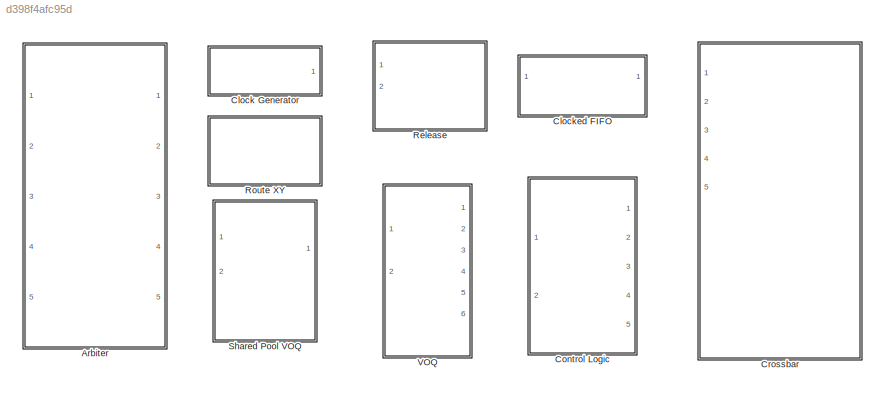
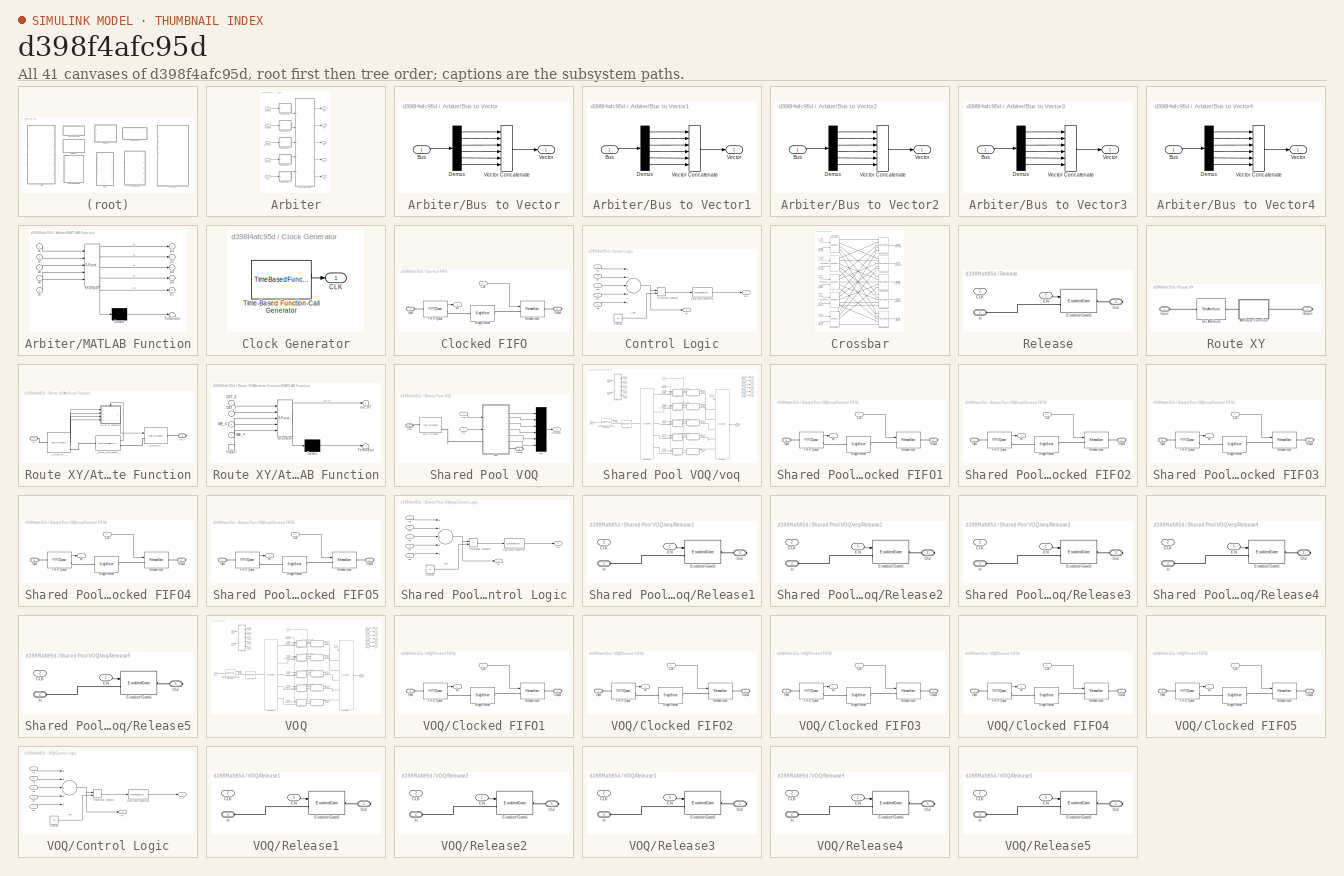
[diagram: thumbnail index - all 41 canvases of the model, root first then tree order]
MODEL slx_d398f4afc95d
KIND library
CONFIG AbsTol = auto
CONFIG FixedStep = auto
CONFIG MaxStep = auto
CONFIG MinStep = auto
CONFIG RelTol = 1e-3
CONFIG SampleTimeConstraint = Unconstrained
CONFIG Solver = ode45
CONFIG SolverMode = Auto
CONFIG SolverName = ode45
CONFIG StartTime = 0.0
CONFIG StopTime = 10.0
BLOCK [SubSystem] Arbiter
  Ports = [5, 5]
  RequestExecContextInheritance = off
  TreatAsAtomicUnit = on
BLOCK [SubSystem] Arbiter/Bus to Vector
  Ports = [1, 1]
  RequestExecContextInheritance = off
BLOCK [Inport] Arbiter/Bus to Vector/Bus
  IconDisplay = Port number
BLOCK [Demux] Arbiter/Bus to Vector/Demux
  DisplayOption = bar
  Outputs = 6
  Ports = [1, 6]
BLOCK [Outport] Arbiter/Bus to Vector/Vector
  IconDisplay = Port number
BLOCK [Concatenate] Arbiter/Bus to Vector/Vector Concatenate
  NumInputs = 6
  Ports = [6, 1]
BLOCK [SubSystem] Arbiter/Bus to Vector1
  Ports = [1, 1]
  RequestExecContextInheritance = off
BLOCK [Inport] Arbiter/Bus to Vector1/Bus
  IconDisplay = Port number
BLOCK [Demux] Arbiter/Bus to Vector1/Demux
  DisplayOption = bar
  Outputs = 6
  Ports = [1, 6]
BLOCK [Outport] Arbiter/Bus to Vector1/Vector
  IconDisplay = Port number
BLOCK [Concatenate] Arbiter/Bus to Vector1/Vector Concatenate
  NumInputs = 6
  Ports = [6, 1]
BLOCK [SubSystem] Arbiter/Bus to Vector2
  Ports = [1, 1]
  RequestExecContextInheritance = off
BLOCK [Inport] Arbiter/Bus to Vector2/Bus
  IconDisplay = Port number
BLOCK [Demux] Arbiter/Bus to Vector2/Demux
  DisplayOption = bar
  Outputs = 6
  Ports = [1, 6]
BLOCK [Outport] Arbiter/Bus to Vector2/Vector
  IconDisplay = Port number
BLOCK [Concatenate] Arbiter/Bus to Vector2/Vector Concatenate
  NumInputs = 6
  Ports = [6, 1]
BLOCK [SubSystem] Arbiter/Bus to Vector3
  Ports = [1, 1]
  RequestExecContextInheritance = off
BLOCK [Inport] Arbiter/Bus to Vector3/Bus
  IconDisplay = Port number
BLOCK [Demux] Arbiter/Bus to Vector3/Demux
  DisplayOption = bar
  Outputs = 6
  Ports = [1, 6]
BLOCK [Outport] Arbiter/Bus to Vector3/Vector
  IconDisplay = Port number
BLOCK [Concatenate] Arbiter/Bus to Vector3/Vector Concatenate
  NumInputs = 6
  Ports = [6, 1]
BLOCK [SubSystem] Arbiter/Bus to Vector4
  Ports = [1, 1]
  RequestExecContextInheritance = off
BLOCK [Inport] Arbiter/Bus to Vector4/Bus
  IconDisplay = Port number
BLOCK [Demux] Arbiter/Bus to Vector4/Demux
  DisplayOption = bar
  Outputs = 6
  Ports = [1, 6]
BLOCK [Outport] Arbiter/Bus to Vector4/Vector
  IconDisplay = Port number
BLOCK [Concatenate] Arbiter/Bus to Vector4/Vector Concatenate
  NumInputs = 6
  Ports = [6, 1]
BLOCK [SubSystem] Arbiter/MATLAB Function
  ErrorFcn = Stateflow.Translate.translate
  PermitHierarchicalResolution = ExplicitOnly
  Ports = [5, 5]
  RequestExecContextInheritance = off
  SFBlockType = MATLAB Function
  TreatAsAtomicUnit = on
BLOCK [Demux] Arbiter/MATLAB Function/ Demux 
  Outputs = 1
  Ports = [1, 1]
BLOCK [S-Function] Arbiter/MATLAB Function/ SFunction 
  FunctionName = sf_sfun
  PortCounts = [5 6]
  Ports = [5, 6]
  Tag = Stateflow S-Function Library1 5
BLOCK [Terminator] Arbiter/MATLAB Function/ Terminator 
BLOCK [Outport] Arbiter/MATLAB Function/p1
  IconDisplay = Port number
BLOCK [Outport] Arbiter/MATLAB Function/p2
  IconDisplay = Port number
  Port = 2
BLOCK [Outport] Arbiter/MATLAB Function/p3
  IconDisplay = Port number
  Port = 3
BLOCK [Outport] Arbiter/MATLAB Function/p4
  IconDisplay = Port number
  Port = 4
BLOCK [Outport] Arbiter/MATLAB Function/p5
  IconDisplay = Port number
  Port = 5
BLOCK [Inport] Arbiter/MATLAB Function/v1
  IconDisplay = Port number
BLOCK [Inport] Arbiter/MATLAB Function/v2
  IconDisplay = Port number
  Port = 2
BLOCK [Inport] Arbiter/MATLAB Function/v3
  IconDisplay = Port number
  Port = 3
BLOCK [Inport] Arbiter/MATLAB Function/v4
  IconDisplay = Port number
  Port = 4
BLOCK [Inport] Arbiter/MATLAB Function/v5
  IconDisplay = Port number
  Port = 5
BLOCK [Inport] Arbiter/N_East
  IconDisplay = Port number
  Port = 4
BLOCK [Inport] Arbiter/N_NI
  IconDisplay = Port number
  Port = 5
BLOCK [Inport] Arbiter/N_North
  IconDisplay = Port number
BLOCK [Inport] Arbiter/N_South
  IconDisplay = Port number
  Port = 2
BLOCK [Inport] Arbiter/N_West
  IconDisplay = Port number
  Port = 3
BLOCK [Outport] Arbiter/P1
  IconDisplay = Port number
BLOCK [Outport] Arbiter/P2
  IconDisplay = Port number
  Port = 2
BLOCK [Outport] Arbiter/P3
  IconDisplay = Port number
  Port = 3
BLOCK [Outport] Arbiter/P4
  IconDisplay = Port number
  Port = 4
BLOCK [Outport] Arbiter/P5
  IconDisplay = Port number
  Port = 5
BLOCK [SubSystem] Clock Generator
  Ports = [0, 1]
  RequestExecContextInheritance = off
BLOCK [Outport] Clock Generator/CLK
  IconDisplay = Port number
BLOCK [TimeBasedFunctionCallGenerator] Clock Generator/Time-Based Function-Call Generator
  OutputPortMap = o0,o1
  Period = P
  Ports = [0, 2]
  StatNumberOfEvents = on
BLOCK [SubSystem] Clocked FIFO
  Ports = [1, 1, 0, 0, 0, 1, 1]
  RequestExecContextInheritance = off
BLOCK [Outport] Clocked FIFO/#n
  IconDisplay = Port number
BLOCK [Inport] Clocked FIFO/CLK
  IconDisplay = Port number
BLOCK [FIFOQueue] Clocked FIFO/FIFO Queue
  Capacity = F
  OutputPortMap = o1
  Ports = [0, 1, 0, 0, 0, 1, 1]
  StatNumberInBlock = on
BLOCK [PMIOPort] Clocked FIFO/Input
  Port = 1
  Side = Left
BLOCK [PMIOPort] Clocked FIFO/Output
  Port = 2
  Side = Right
BLOCK [ReleaseGate] Clocked FIFO/Release Gate
  InputPortMap = u0
  OpenGateUpon = Function call from port fcn
  Ports = [1, 0, 0, 0, 0, 1, 1]
BLOCK [SingleServer] Clocked FIFO/Single Server
  Ports = [0, 0, 0, 0, 0, 1, 1]
  ServiceTime = 0
BLOCK [SubSystem] Control Logic
  Ports = [5, 2]
  RequestExecContextInheritance = off
  TreatAsAtomicUnit = on
BLOCK [Outport] Control Logic/#n
  IconDisplay = Port number
  Port = 2
BLOCK [Sum] Control Logic/Add
  InputSameDT = off
  Inputs = +++++
  OutDataTypeStr = Inherit: Inherit via internal rule
  Ports = [5, 1]
  SaturateOnIntegerOverflow = off
BLOCK [Constant] Control Logic/Constant
  Value = 10
BLOCK [DataTypeConversion] Control Logic/Data Type Conversion
  OutDataTypeStr = double
  RndMeth = Floor
  SaturateOnIntegerOverflow = off
BLOCK [Outport] Control Logic/EN
  IconDisplay = Port number
  OutDataTypeStr = double
BLOCK [Inport] Control Logic/In1
  IconDisplay = Port number
BLOCK [Inport] Control Logic/In2
  IconDisplay = Port number
  Port = 2
BLOCK [Inport] Control Logic/In3
  IconDisplay = Port number
  Port = 3
BLOCK [Inport] Control Logic/In4
  IconDisplay = Port number
  Port = 4
BLOCK [Inport] Control Logic/In5
  IconDisplay = Port number
  Port = 5
BLOCK [RelationalOperator] Control Logic/Relational Operator
  InputSameDT = off
  Operator = <
  Ports = [2, 1]
BLOCK [SubSystem] Crossbar
  Ports = [5, 0, 0, 0, 0, 5, 5]
  RequestExecContextInheritance = off
BLOCK [PMIOPort] Crossbar/IN_East
  Port = 7
  Side = Left
BLOCK [PMIOPort] Crossbar/IN_NI
  Port = 9
  Side = Left
BLOCK [PMIOPort] Crossbar/IN_North
  Port = 1
  Side = Left
BLOCK [PMIOPort] Crossbar/IN_South
  Port = 3
  Side = Left
BLOCK [PMIOPort] Crossbar/IN_West
  Port = 5
  Side = Left
BLOCK [PMIOPort] Crossbar/Out_East
  Port = 8
  Side = Right
BLOCK [PMIOPort] Crossbar/Out_NI
  Port = 10
  Side = Right
BLOCK [PMIOPort] Crossbar/Out_North
  Port = 2
  Side = Right
BLOCK [PMIOPort] Crossbar/Out_South
  Port = 4
  Side = Right
BLOCK [PMIOPort] Crossbar/Out_West
  Port = 6
  Side = Right
BLOCK [OutputSwitch] Crossbar/Output Switch10
  AttributeName = RT
  InputPortMap = u0
  NumberOutputPorts = 5
  Ports = [1, 0, 0, 0, 0, 1, 5]
  SwitchingCriterion = From signal port p
BLOCK [OutputSwitch] Crossbar/Output Switch11
  AttributeName = RT
  InputPortMap = u0
  NumberOutputPorts = 5
  Ports = [1, 0, 0, 0, 0, 1, 5]
  SwitchingCriterion = From signal port p
BLOCK [OutputSwitch] Crossbar/Output Switch12
  AttributeName = RT
  InputPortMap = u0
  NumberOutputPorts = 5
  Ports = [1, 0, 0, 0, 0, 1, 5]
  SwitchingCriterion = From signal port p
BLOCK [OutputSwitch] Crossbar/Output Switch8
  AttributeName = RT
  InputPortMap = u0
  NumberOutputPorts = 5
  Ports = [1, 0, 0, 0, 0, 1, 5]
  SwitchingCriterion = From signal port p
BLOCK [OutputSwitch] Crossbar/Output Switch9
  AttributeName = RT
  InputPortMap = u0
  NumberOutputPorts = 5
  Ports = [1, 0, 0, 0, 0, 1, 5]
  SwitchingCriterion = From signal port p
BLOCK [Inport] Crossbar/P_East
  IconDisplay = Port number
  Port = 4
BLOCK [Inport] Crossbar/P_NI
  IconDisplay = Port number
  Port = 5
BLOCK [Inport] Crossbar/P_North
  IconDisplay = Port number
BLOCK [Inport] Crossbar/P_South
  IconDisplay = Port number
  Port = 2
BLOCK [Inport] Crossbar/P_West
  IconDisplay = Port number
  Port = 3
BLOCK [PathCombiner] Crossbar/Path Combiner1
  NumberInputPorts = 5
  Ports = [0, 0, 0, 0, 0, 5, 1]
BLOCK [PathCombiner] Crossbar/Path Combiner2
  NumberInputPorts = 5
  Ports = [0, 0, 0, 0, 0, 5, 1]
BLOCK [PathCombiner] Crossbar/Path Combiner3
  NumberInputPorts = 5
  Ports = [0, 0, 0, 0, 0, 5, 1]
BLOCK [PathCombiner] Crossbar/Path Combiner4
  NumberInputPorts = 5
  Ports = [0, 0, 0, 0, 0, 5, 1]
BLOCK [PathCombiner] Crossbar/Path Combiner7
  NumberInputPorts = 5
  Ports = [0, 0, 0, 0, 0, 5, 1]
BLOCK [SubSystem] Release
  Ports = [2, 0, 0, 0, 0, 1, 1]
  RequestExecContextInheritance = off
BLOCK [Inport] Release/CLK
  IconDisplay = Port number
  Port = 2
BLOCK [Inport] Release/EN
  IconDisplay = Port number
BLOCK [EnabledGate] Release/Enabled Gate6
  InputPortMap = u0
  Ports = [1, 0, 0, 0, 0, 1, 1]
BLOCK [PMIOPort] Release/In
  Port = 2
  Side = Left
BLOCK [PMIOPort] Release/Out
  Port = 1
  Side = Right
BLOCK [SubSystem] Route XY
  Ports = [0, 0, 0, 0, 0, 1, 1]
  RequestExecContextInheritance = off
BLOCK [SubSystem] Route XY/Attribute Function
  CopyFcn = des.afb.attributefunction_support(gcb,'CopyFcn');
  ErrorFcn = des.afb.error_redirect
  LoadFcn = des.afb.attributefunction_support(gcb,'LoadFcn');
  MaskHideContents = on
  OpenFcn = des.afb.attributefunction_support(gcb,'OpenFcn');
  Ports = [0, 0, 0, 0, 0, 1, 1]
  RequestExecContextInheritance = off
  StartFcn = des.afb.attributefunction_support(gcb,'StartFcn');
BLOCK [PMIOPort] Route XY/Attribute Function/IN
  Port = 1
  Side = Left
BLOCK [SubSystem] Route XY/Attribute Function/MATLAB Function
  ErrorFcn = Stateflow.Translate.translate
  PermitHierarchicalResolution = ExplicitOnly
  Ports = [4, 1, 0, 1]
  RequestExecContextInheritance = off
  SFBlockType = MATLAB Function
  TreatAsAtomicUnit = on
BLOCK [Demux] Route XY/Attribute Function/MATLAB Function/ Demux 
  Outputs = 1
  Ports = [1, 1]
BLOCK [S-Function] Route XY/Attribute Function/MATLAB Function/ SFunction 
  FunctionName = sf_sfun
  PortCounts = [5 2]
  Ports = [5, 2]
  Tag = Stateflow S-Function Library1 1
BLOCK [Terminator] Route XY/Attribute Function/MATLAB Function/ Terminator 
BLOCK [Inport] Route XY/Attribute Function/MATLAB Function/DST_X
  IconDisplay = Port number
BLOCK [Inport] Route XY/Attribute Function/MATLAB Function/DST_Y
  IconDisplay = Port number
  Port = 2
BLOCK [Inport] Route XY/Attribute Function/MATLAB Function/IME_X
  IconDisplay = Port number
  Port = 3
BLOCK [Inport] Route XY/Attribute Function/MATLAB Function/IME_Y
  IconDisplay = Port number
  Port = 4
BLOCK [Outport] Route XY/Attribute Function/MATLAB Function/out_RT
  IconDisplay = Port number
BLOCK [TriggerPort] Route XY/Attribute Function/MATLAB Function/trigger
  Ports = [0, 1]
  ShowOutputPort = on
  TriggerType = function-call
BLOCK [PMIOPort] Route XY/Attribute Function/OUT
  Port = 2
  Side = Right
BLOCK [EntityDepartureFunctionCallGenerator] Route XY/Attribute Function/__DMLF__EDE2FCE__
  IsInsideAFB = on
  OutputPortMap = o0
  Ports = [0, 1, 0, 0, 0, 1, 1]
  TimingFunctionCallF1 = Before entity departure
BLOCK [GetAttribute] Route XY/Attribute Function/__DMLF__GA__
  AttributeDefaultValue = 1|1|1|1
  AttributeMissing = Error|Error|Error|Error
  AttributeName = DST_X|DST_Y|IME_X|IME_Y
  AttributeSendTiming = Before entity departure|Before entity departure|Before entity departure|Before entity departure
  AttributeTreatAsVector = 1|1|1|1
  EvaluatedDefaultAttributeValue = { [];[];[];[]}
  IsInsideAFB = on
  OutputPortMap = o1,o2,o3,o4
  Ports = [0, 4, 0, 0, 0, 1, 1]
BLOCK [SetAttribute] Route XY/Attribute Function/__DMLF__SA__
  AttributeFrom = Signal port
  AttributeName = RT
  EvaluatedAttributeValue = { []}
  InputPortMap = u0
  IsInsideAFB = on
  Ports = [1, 0, 0, 0, 0, 1, 1]
BLOCK [PMIOPort] Route XY/Input
  Port = 2
  Side = Left
BLOCK [PMIOPort] Route XY/Output
  Port = 1
  Side = Right
BLOCK [SetAttribute] Route XY/Set Attribute
  AttributeFrom = Dialog|Dialog
  AttributeName = IME_X|IME_Y
  AttributeTreatAsVector = 1|1
  AttributeValue = ME_X|ME_Y
  EvaluatedAttributeValue = { ME_X;ME_Y}
  Ports = [0, 0, 0, 0, 0, 1, 1]
BLOCK [SubSystem] Shared Pool VOQ
  Ports = [2, 1, 0, 0, 0, 1, 1]
  RequestExecContextInheritance = off
BLOCK [Inport] Shared Pool VOQ/CLK
  IconDisplay = Port number
  Port = 2
BLOCK [GetAttribute] Shared Pool VOQ/Get Attribute
  AttributeDefaultValue = 1|1|1
  AttributeMissing = Error|Error|Error
  AttributeName = RT|DST_X|DST_Y
  AttributeSendTiming = After entity departure|After entity departure|After entity departure
  AttributeTreatAsVector = 1|1|1
  EvaluatedDefaultAttributeValue = { [];[];[]}
  OutputPortMap = o1,o2,o3
  Ports = [0, 3, 0, 0, 0, 1, 1]
BLOCK [PMIOPort] Shared Pool VOQ/Input
  Port = 1
  Side = Left
BLOCK [Mux] Shared Pool VOQ/Mux
  DisplayOption = signals
  Inputs = 6
  Ports = [6, 1]
BLOCK [Outport] Shared Pool VOQ/Occupancy
  IconDisplay = Port number
BLOCK [PMIOPort] Shared Pool VOQ/Output
  Port = 2
  Side = Right
BLOCK [Inport] Shared Pool VOQ/Port
  IconDisplay = Port number
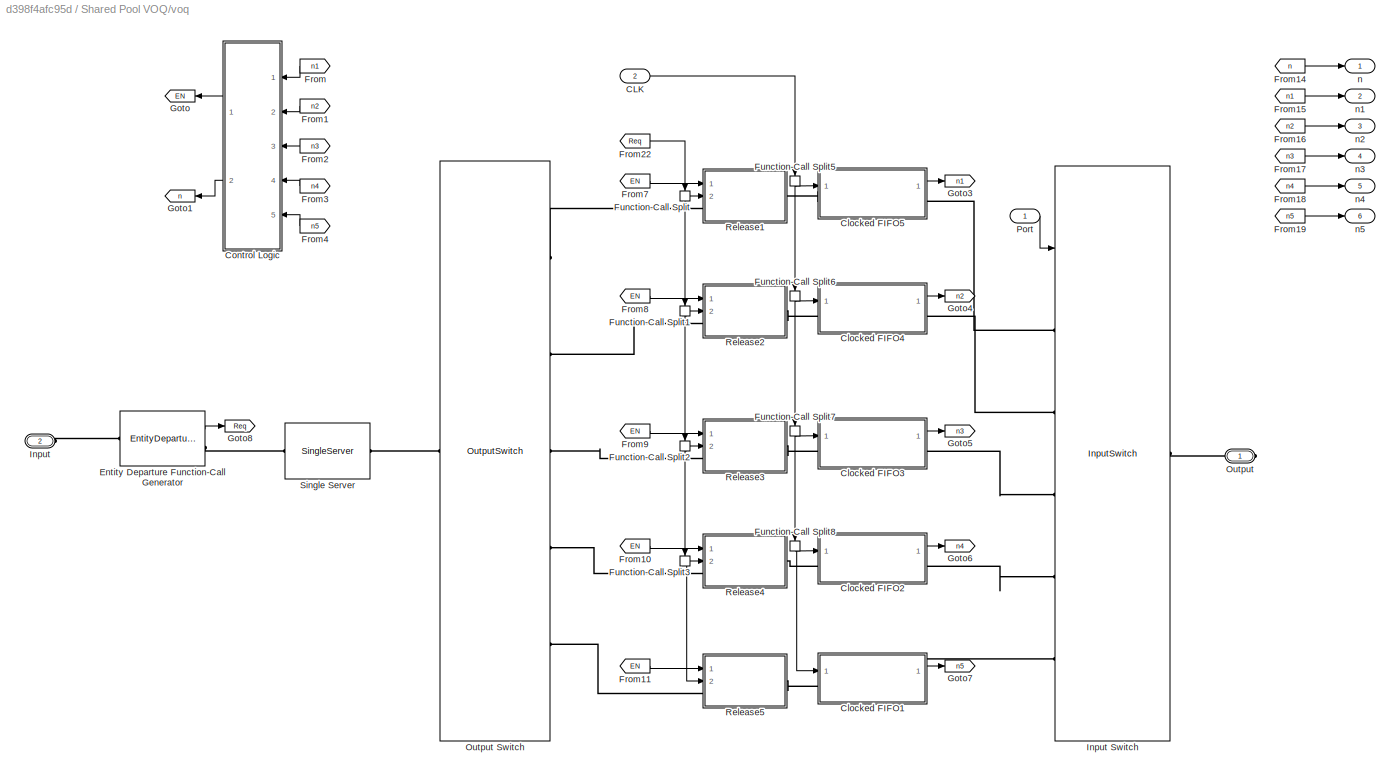
BLOCK [SubSystem] Shared Pool VOQ/voq
  Ports = [2, 6, 0, 0, 0, 1, 1]
  RequestExecContextInheritance = off
BLOCK [Inport] Shared Pool VOQ/voq/CLK
  IconDisplay = Port number
  Port = 2
BLOCK [SubSystem] Shared Pool VOQ/voq/Clocked FIFO1
  Ports = [1, 1, 0, 0, 0, 1, 1]
  RequestExecContextInheritance = off
BLOCK [Outport] Shared Pool VOQ/voq/Clocked FIFO1/#n
  IconDisplay = Port number
BLOCK [Inport] Shared Pool VOQ/voq/Clocked FIFO1/CLK
  IconDisplay = Port number
BLOCK [FIFOQueue] Shared Pool VOQ/voq/Clocked FIFO1/FIFO Queue
  Capacity = F
  OutputPortMap = o1
  Ports = [0, 1, 0, 0, 0, 1, 1]
  StatNumberInBlock = on
BLOCK [PMIOPort] Shared Pool VOQ/voq/Clocked FIFO1/Input
  Port = 1
  Side = Left
BLOCK [PMIOPort] Shared Pool VOQ/voq/Clocked FIFO1/Output
  Port = 2
  Side = Right
BLOCK [ReleaseGate] Shared Pool VOQ/voq/Clocked FIFO1/Release Gate
  InputPortMap = u0
  OpenGateUpon = Function call from port fcn
  Ports = [1, 0, 0, 0, 0, 1, 1]
BLOCK [SingleServer] Shared Pool VOQ/voq/Clocked FIFO1/Single Server
  Ports = [0, 0, 0, 0, 0, 1, 1]
  ServiceTime = 0
BLOCK [SubSystem] Shared Pool VOQ/voq/Clocked FIFO2
  Ports = [1, 1, 0, 0, 0, 1, 1]
  RequestExecContextInheritance = off
BLOCK [Outport] Shared Pool VOQ/voq/Clocked FIFO2/#n
  IconDisplay = Port number
BLOCK [Inport] Shared Pool VOQ/voq/Clocked FIFO2/CLK
  IconDisplay = Port number
BLOCK [FIFOQueue] Shared Pool VOQ/voq/Clocked FIFO2/FIFO Queue
  Capacity = F
  OutputPortMap = o1
  Ports = [0, 1, 0, 0, 0, 1, 1]
  StatNumberInBlock = on
BLOCK [PMIOPort] Shared Pool VOQ/voq/Clocked FIFO2/Input
  Port = 1
  Side = Left
BLOCK [PMIOPort] Shared Pool VOQ/voq/Clocked FIFO2/Output
  Port = 2
  Side = Right
BLOCK [ReleaseGate] Shared Pool VOQ/voq/Clocked FIFO2/Release Gate
  InputPortMap = u0
  OpenGateUpon = Function call from port fcn
  Ports = [1, 0, 0, 0, 0, 1, 1]
BLOCK [SingleServer] Shared Pool VOQ/voq/Clocked FIFO2/Single Server
  Ports = [0, 0, 0, 0, 0, 1, 1]
  ServiceTime = 0
BLOCK [SubSystem] Shared Pool VOQ/voq/Clocked FIFO3
  Ports = [1, 1, 0, 0, 0, 1, 1]
  RequestExecContextInheritance = off
BLOCK [Outport] Shared Pool VOQ/voq/Clocked FIFO3/#n
  IconDisplay = Port number
BLOCK [Inport] Shared Pool VOQ/voq/Clocked FIFO3/CLK
  IconDisplay = Port number
BLOCK [FIFOQueue] Shared Pool VOQ/voq/Clocked FIFO3/FIFO Queue
  Capacity = F
  OutputPortMap = o1
  Ports = [0, 1, 0, 0, 0, 1, 1]
  StatNumberInBlock = on
BLOCK [PMIOPort] Shared Pool VOQ/voq/Clocked FIFO3/Input
  Port = 1
  Side = Left
BLOCK [PMIOPort] Shared Pool VOQ/voq/Clocked FIFO3/Output
  Port = 2
  Side = Right
BLOCK [ReleaseGate] Shared Pool VOQ/voq/Clocked FIFO3/Release Gate
  InputPortMap = u0
  OpenGateUpon = Function call from port fcn
  Ports = [1, 0, 0, 0, 0, 1, 1]
BLOCK [SingleServer] Shared Pool VOQ/voq/Clocked FIFO3/Single Server
  Ports = [0, 0, 0, 0, 0, 1, 1]
  ServiceTime = 0
BLOCK [SubSystem] Shared Pool VOQ/voq/Clocked FIFO4
  Ports = [1, 1, 0, 0, 0, 1, 1]
  RequestExecContextInheritance = off
BLOCK [Outport] Shared Pool VOQ/voq/Clocked FIFO4/#n
  IconDisplay = Port number
BLOCK [Inport] Shared Pool VOQ/voq/Clocked FIFO4/CLK
  IconDisplay = Port number
BLOCK [FIFOQueue] Shared Pool VOQ/voq/Clocked FIFO4/FIFO Queue
  Capacity = F
  OutputPortMap = o1
  Ports = [0, 1, 0, 0, 0, 1, 1]
  StatNumberInBlock = on
BLOCK [PMIOPort] Shared Pool VOQ/voq/Clocked FIFO4/Input
  Port = 1
  Side = Left
BLOCK [PMIOPort] Shared Pool VOQ/voq/Clocked FIFO4/Output
  Port = 2
  Side = Right
BLOCK [ReleaseGate] Shared Pool VOQ/voq/Clocked FIFO4/Release Gate
  InputPortMap = u0
  OpenGateUpon = Function call from port fcn
  Ports = [1, 0, 0, 0, 0, 1, 1]
BLOCK [SingleServer] Shared Pool VOQ/voq/Clocked FIFO4/Single Server
  Ports = [0, 0, 0, 0, 0, 1, 1]
  ServiceTime = 0
BLOCK [SubSystem] Shared Pool VOQ/voq/Clocked FIFO5
  Ports = [1, 1, 0, 0, 0, 1, 1]
  RequestExecContextInheritance = off
BLOCK [Outport] Shared Pool VOQ/voq/Clocked FIFO5/#n
  IconDisplay = Port number
BLOCK [Inport] Shared Pool VOQ/voq/Clocked FIFO5/CLK
  IconDisplay = Port number
BLOCK [FIFOQueue] Shared Pool VOQ/voq/Clocked FIFO5/FIFO Queue
  Capacity = F
  OutputPortMap = o1
  Ports = [0, 1, 0, 0, 0, 1, 1]
  StatNumberInBlock = on
BLOCK [PMIOPort] Shared Pool VOQ/voq/Clocked FIFO5/Input
  Port = 1
  Side = Left
BLOCK [PMIOPort] Shared Pool VOQ/voq/Clocked FIFO5/Output
  Port = 2
  Side = Right
BLOCK [ReleaseGate] Shared Pool VOQ/voq/Clocked FIFO5/Release Gate
  InputPortMap = u0
  OpenGateUpon = Function call from port fcn
  Ports = [1, 0, 0, 0, 0, 1, 1]
BLOCK [SingleServer] Shared Pool VOQ/voq/Clocked FIFO5/Single Server
  Ports = [0, 0, 0, 0, 0, 1, 1]
  ServiceTime = 0
BLOCK [SubSystem] Shared Pool VOQ/voq/Control Logic
  Ports = [5, 2]
  RequestExecContextInheritance = off
  TreatAsAtomicUnit = on
BLOCK [Outport] Shared Pool VOQ/voq/Control Logic/#n
  IconDisplay = Port number
  Port = 2
BLOCK [Sum] Shared Pool VOQ/voq/Control Logic/Add
  InputSameDT = off
  Inputs = +++++
  OutDataTypeStr = Inherit: Inherit via internal rule
  Ports = [5, 1]
  SaturateOnIntegerOverflow = off
BLOCK [Constant] Shared Pool VOQ/voq/Control Logic/Constant
  Value = 10
BLOCK [DataTypeConversion] Shared Pool VOQ/voq/Control Logic/Data Type Conversion
  OutDataTypeStr = double
  RndMeth = Floor
  SaturateOnIntegerOverflow = off
BLOCK [Outport] Shared Pool VOQ/voq/Control Logic/EN
  IconDisplay = Port number
  OutDataTypeStr = double
BLOCK [Inport] Shared Pool VOQ/voq/Control Logic/In1
  IconDisplay = Port number
BLOCK [Inport] Shared Pool VOQ/voq/Control Logic/In2
  IconDisplay = Port number
  Port = 2
BLOCK [Inport] Shared Pool VOQ/voq/Control Logic/In3
  IconDisplay = Port number
  Port = 3
BLOCK [Inport] Shared Pool VOQ/voq/Control Logic/In4
  IconDisplay = Port number
  Port = 4
BLOCK [Inport] Shared Pool VOQ/voq/Control Logic/In5
  IconDisplay = Port number
  Port = 5
BLOCK [RelationalOperator] Shared Pool VOQ/voq/Control Logic/Relational Operator
  InputSameDT = off
  Operator = <
  Ports = [2, 1]
BLOCK [EntityDepartureFunctionCallGenerator] Shared Pool VOQ/voq/Entity Departure Function-Call Generator
  OutputPortMap = o0
  Ports = [0, 1, 0, 0, 0, 1, 1]
BLOCK [From] Shared Pool VOQ/voq/From
  GotoTag = n1
BLOCK [From] Shared Pool VOQ/voq/From1
  GotoTag = n2
BLOCK [From] Shared Pool VOQ/voq/From10
  GotoTag = EN
BLOCK [From] Shared Pool VOQ/voq/From11
  GotoTag = EN
BLOCK [From] Shared Pool VOQ/voq/From14
  GotoTag = n
BLOCK [From] Shared Pool VOQ/voq/From15
  GotoTag = n1
BLOCK [From] Shared Pool VOQ/voq/From16
  GotoTag = n2
BLOCK [From] Shared Pool VOQ/voq/From17
  GotoTag = n3
BLOCK [From] Shared Pool VOQ/voq/From18
  GotoTag = n4
BLOCK [From] Shared Pool VOQ/voq/From19
  GotoTag = n5
BLOCK [From] Shared Pool VOQ/voq/From2
  GotoTag = n3
BLOCK [From] Shared Pool VOQ/voq/From22
  GotoTag = Req
BLOCK [From] Shared Pool VOQ/voq/From3
  GotoTag = n4
BLOCK [From] Shared Pool VOQ/voq/From4
  GotoTag = n5
BLOCK [From] Shared Pool VOQ/voq/From7
  GotoTag = EN
BLOCK [From] Shared Pool VOQ/voq/From8
  GotoTag = EN
BLOCK [From] Shared Pool VOQ/voq/From9
  GotoTag = EN
BLOCK [FunctionCallSplit] Shared Pool VOQ/voq/Function-Call Split
BLOCK [FunctionCallSplit] Shared Pool VOQ/voq/Function-Call Split1
BLOCK [FunctionCallSplit] Shared Pool VOQ/voq/Function-Call Split2
BLOCK [FunctionCallSplit] Shared Pool VOQ/voq/Function-Call Split3
BLOCK [FunctionCallSplit] Shared Pool VOQ/voq/Function-Call Split5
BLOCK [FunctionCallSplit] Shared Pool VOQ/voq/Function-Call Split6
BLOCK [FunctionCallSplit] Shared Pool VOQ/voq/Function-Call Split7
BLOCK [FunctionCallSplit] Shared Pool VOQ/voq/Function-Call Split8
BLOCK [Goto] Shared Pool VOQ/voq/Goto
  GotoTag = EN
BLOCK [Goto] Shared Pool VOQ/voq/Goto1
  GotoTag = n
BLOCK [Goto] Shared Pool VOQ/voq/Goto3
  GotoTag = n1
BLOCK [Goto] Shared Pool VOQ/voq/Goto4
  GotoTag = n2
BLOCK [Goto] Shared Pool VOQ/voq/Goto5
  GotoTag = n3
BLOCK [Goto] Shared Pool VOQ/voq/Goto6
  GotoTag = n4
BLOCK [Goto] Shared Pool VOQ/voq/Goto7
  GotoTag = n5
BLOCK [Goto] Shared Pool VOQ/voq/Goto8
  GotoTag = Req
BLOCK [PMIOPort] Shared Pool VOQ/voq/Input
  Port = 2
  Side = Left
BLOCK [InputSwitch] Shared Pool VOQ/voq/Input Switch
  InputPortMap = u0
  NumberInputPorts = 5
  Ports = [1, 0, 0, 0, 0, 5, 1]
  SwitchingCriterion = From signal port p
BLOCK [PMIOPort] Shared Pool VOQ/voq/Output
  Port = 1
  Side = Right
BLOCK [OutputSwitch] Shared Pool VOQ/voq/Output Switch
  AttributeName = RT
  NumberOutputPorts = 5
  Ports = [0, 0, 0, 0, 0, 1, 5]
  SwitchingCriterion = From attribute
BLOCK [Inport] Shared Pool VOQ/voq/Port
  IconDisplay = Port number
BLOCK [SubSystem] Shared Pool VOQ/voq/Release1
  Ports = [2, 0, 0, 0, 0, 1, 1]
  RequestExecContextInheritance = off
BLOCK [Inport] Shared Pool VOQ/voq/Release1/CLK
  IconDisplay = Port number
  Port = 2
BLOCK [Inport] Shared Pool VOQ/voq/Release1/EN
  IconDisplay = Port number
BLOCK [EnabledGate] Shared Pool VOQ/voq/Release1/Enabled Gate6
  InputPortMap = u0
  Ports = [1, 0, 0, 0, 0, 1, 1]
BLOCK [PMIOPort] Shared Pool VOQ/voq/Release1/In
  Port = 2
  Side = Left
BLOCK [PMIOPort] Shared Pool VOQ/voq/Release1/Out
  Port = 1
  Side = Right
BLOCK [SubSystem] Shared Pool VOQ/voq/Release2
  Ports = [2, 0, 0, 0, 0, 1, 1]
  RequestExecContextInheritance = off
BLOCK [Inport] Shared Pool VOQ/voq/Release2/CLK
  IconDisplay = Port number
  Port = 2
BLOCK [Inport] Shared Pool VOQ/voq/Release2/EN
  IconDisplay = Port number
BLOCK [EnabledGate] Shared Pool VOQ/voq/Release2/Enabled Gate6
  InputPortMap = u0
  Ports = [1, 0, 0, 0, 0, 1, 1]
BLOCK [PMIOPort] Shared Pool VOQ/voq/Release2/In
  Port = 2
  Side = Left
BLOCK [PMIOPort] Shared Pool VOQ/voq/Release2/Out
  Port = 1
  Side = Right
BLOCK [SubSystem] Shared Pool VOQ/voq/Release3
  Ports = [2, 0, 0, 0, 0, 1, 1]
  RequestExecContextInheritance = off
BLOCK [Inport] Shared Pool VOQ/voq/Release3/CLK
  IconDisplay = Port number
  Port = 2
BLOCK [Inport] Shared Pool VOQ/voq/Release3/EN
  IconDisplay = Port number
BLOCK [EnabledGate] Shared Pool VOQ/voq/Release3/Enabled Gate6
  InputPortMap = u0
  Ports = [1, 0, 0, 0, 0, 1, 1]
BLOCK [PMIOPort] Shared Pool VOQ/voq/Release3/In
  Port = 2
  Side = Left
BLOCK [PMIOPort] Shared Pool VOQ/voq/Release3/Out
  Port = 1
  Side = Right
BLOCK [SubSystem] Shared Pool VOQ/voq/Release4
  Ports = [2, 0, 0, 0, 0, 1, 1]
  RequestExecContextInheritance = off
BLOCK [Inport] Shared Pool VOQ/voq/Release4/CLK
  IconDisplay = Port number
  Port = 2
BLOCK [Inport] Shared Pool VOQ/voq/Release4/EN
  IconDisplay = Port number
BLOCK [EnabledGate] Shared Pool VOQ/voq/Release4/Enabled Gate6
  InputPortMap = u0
  Ports = [1, 0, 0, 0, 0, 1, 1]
BLOCK [PMIOPort] Shared Pool VOQ/voq/Release4/In
  Port = 2
  Side = Left
BLOCK [PMIOPort] Shared Pool VOQ/voq/Release4/Out
  Port = 1
  Side = Right
BLOCK [SubSystem] Shared Pool VOQ/voq/Release5
  Ports = [2, 0, 0, 0, 0, 1, 1]
  RequestExecContextInheritance = off
BLOCK [Inport] Shared Pool VOQ/voq/Release5/CLK
  IconDisplay = Port number
  Port = 2
BLOCK [Inport] Shared Pool VOQ/voq/Release5/EN
  IconDisplay = Port number
BLOCK [EnabledGate] Shared Pool VOQ/voq/Release5/Enabled Gate6
  InputPortMap = u0
  Ports = [1, 0, 0, 0, 0, 1, 1]
BLOCK [PMIOPort] Shared Pool VOQ/voq/Release5/In
  Port = 2
  Side = Left
BLOCK [PMIOPort] Shared Pool VOQ/voq/Release5/Out
  Port = 1
  Side = Right
BLOCK [SingleServer] Shared Pool VOQ/voq/Single Server
  Ports = [0, 0, 0, 0, 0, 1, 1]
  ServiceTime = 0
BLOCK [Outport] Shared Pool VOQ/voq/n
  IconDisplay = Port number
BLOCK [Outport] Shared Pool VOQ/voq/n1
  IconDisplay = Port number
  Port = 2
BLOCK [Outport] Shared Pool VOQ/voq/n2
  IconDisplay = Port number
  Port = 3
BLOCK [Outport] Shared Pool VOQ/voq/n3
  IconDisplay = Port number
  Port = 4
BLOCK [Outport] Shared Pool VOQ/voq/n4
  IconDisplay = Port number
  Port = 5
BLOCK [Outport] Shared Pool VOQ/voq/n5
  IconDisplay = Port number
  Port = 6
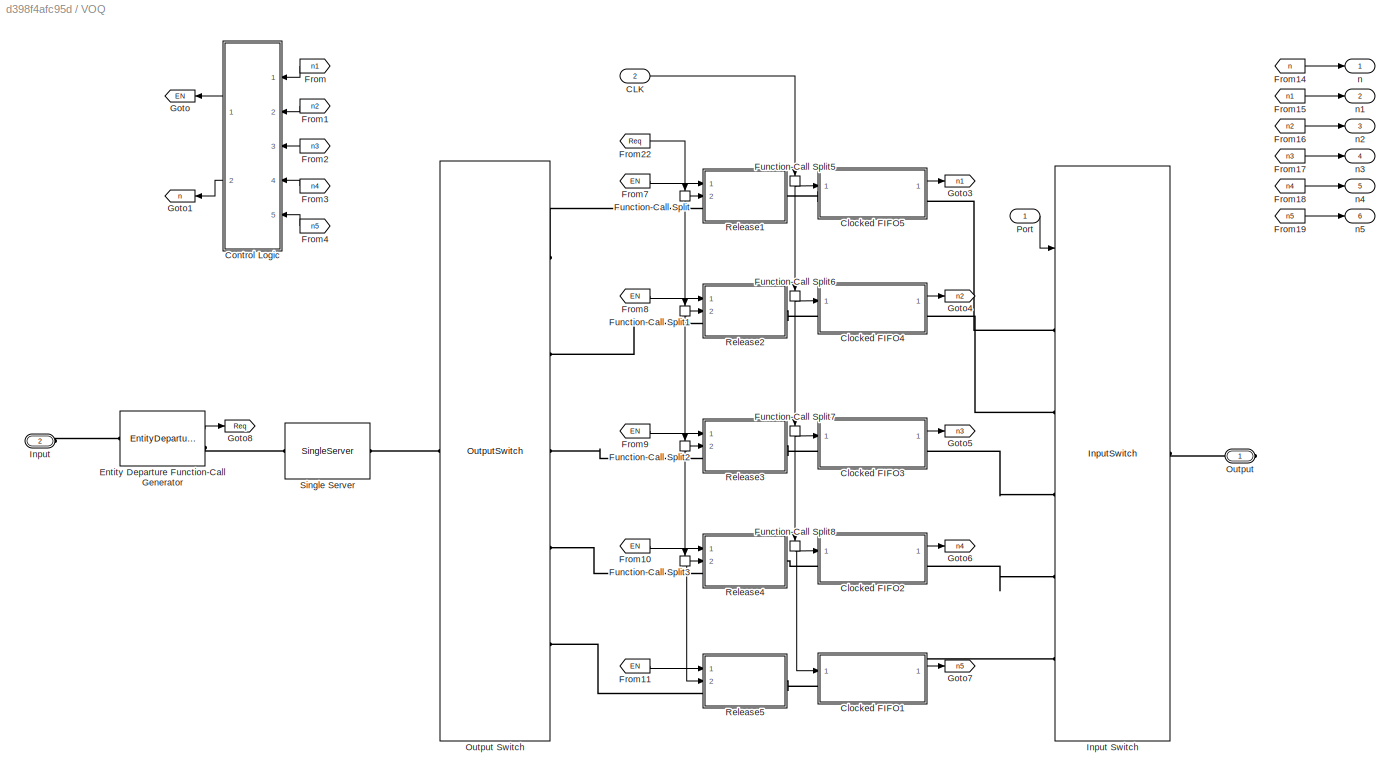
BLOCK [SubSystem] VOQ
  Ports = [2, 6, 0, 0, 0, 1, 1]
  RequestExecContextInheritance = off
BLOCK [Inport] VOQ/CLK
  IconDisplay = Port number
  Port = 2
BLOCK [SubSystem] VOQ/Clocked FIFO1
  Ports = [1, 1, 0, 0, 0, 1, 1]
  RequestExecContextInheritance = off
BLOCK [Outport] VOQ/Clocked FIFO1/#n
  IconDisplay = Port number
BLOCK [Inport] VOQ/Clocked FIFO1/CLK
  IconDisplay = Port number
BLOCK [FIFOQueue] VOQ/Clocked FIFO1/FIFO Queue
  Capacity = F
  OutputPortMap = o1
  Ports = [0, 1, 0, 0, 0, 1, 1]
  StatNumberInBlock = on
BLOCK [PMIOPort] VOQ/Clocked FIFO1/Input
  Port = 1
  Side = Left
BLOCK [PMIOPort] VOQ/Clocked FIFO1/Output
  Port = 2
  Side = Right
BLOCK [ReleaseGate] VOQ/Clocked FIFO1/Release Gate
  InputPortMap = u0
  OpenGateUpon = Function call from port fcn
  Ports = [1, 0, 0, 0, 0, 1, 1]
BLOCK [SingleServer] VOQ/Clocked FIFO1/Single Server
  Ports = [0, 0, 0, 0, 0, 1, 1]
  ServiceTime = 0
BLOCK [SubSystem] VOQ/Clocked FIFO2
  Ports = [1, 1, 0, 0, 0, 1, 1]
  RequestExecContextInheritance = off
BLOCK [Outport] VOQ/Clocked FIFO2/#n
  IconDisplay = Port number
BLOCK [Inport] VOQ/Clocked FIFO2/CLK
  IconDisplay = Port number
BLOCK [FIFOQueue] VOQ/Clocked FIFO2/FIFO Queue
  Capacity = F
  OutputPortMap = o1
  Ports = [0, 1, 0, 0, 0, 1, 1]
  StatNumberInBlock = on
BLOCK [PMIOPort] VOQ/Clocked FIFO2/Input
  Port = 1
  Side = Left
BLOCK [PMIOPort] VOQ/Clocked FIFO2/Output
  Port = 2
  Side = Right
BLOCK [ReleaseGate] VOQ/Clocked FIFO2/Release Gate
  InputPortMap = u0
  OpenGateUpon = Function call from port fcn
  Ports = [1, 0, 0, 0, 0, 1, 1]
BLOCK [SingleServer] VOQ/Clocked FIFO2/Single Server
  Ports = [0, 0, 0, 0, 0, 1, 1]
  ServiceTime = 0
BLOCK [SubSystem] VOQ/Clocked FIFO3
  Ports = [1, 1, 0, 0, 0, 1, 1]
  RequestExecContextInheritance = off
BLOCK [Outport] VOQ/Clocked FIFO3/#n
  IconDisplay = Port number
BLOCK [Inport] VOQ/Clocked FIFO3/CLK
  IconDisplay = Port number
BLOCK [FIFOQueue] VOQ/Clocked FIFO3/FIFO Queue
  Capacity = F
  OutputPortMap = o1
  Ports = [0, 1, 0, 0, 0, 1, 1]
  StatNumberInBlock = on
BLOCK [PMIOPort] VOQ/Clocked FIFO3/Input
  Port = 1
  Side = Left
BLOCK [PMIOPort] VOQ/Clocked FIFO3/Output
  Port = 2
  Side = Right
BLOCK [ReleaseGate] VOQ/Clocked FIFO3/Release Gate
  InputPortMap = u0
  OpenGateUpon = Function call from port fcn
  Ports = [1, 0, 0, 0, 0, 1, 1]
BLOCK [SingleServer] VOQ/Clocked FIFO3/Single Server
  Ports = [0, 0, 0, 0, 0, 1, 1]
  ServiceTime = 0
BLOCK [SubSystem] VOQ/Clocked FIFO4
  Ports = [1, 1, 0, 0, 0, 1, 1]
  RequestExecContextInheritance = off
BLOCK [Outport] VOQ/Clocked FIFO4/#n
  IconDisplay = Port number
BLOCK [Inport] VOQ/Clocked FIFO4/CLK
  IconDisplay = Port number
BLOCK [FIFOQueue] VOQ/Clocked FIFO4/FIFO Queue
  Capacity = F
  OutputPortMap = o1
  Ports = [0, 1, 0, 0, 0, 1, 1]
  StatNumberInBlock = on
BLOCK [PMIOPort] VOQ/Clocked FIFO4/Input
  Port = 1
  Side = Left
BLOCK [PMIOPort] VOQ/Clocked FIFO4/Output
  Port = 2
  Side = Right
BLOCK [ReleaseGate] VOQ/Clocked FIFO4/Release Gate
  InputPortMap = u0
  OpenGateUpon = Function call from port fcn
  Ports = [1, 0, 0, 0, 0, 1, 1]
BLOCK [SingleServer] VOQ/Clocked FIFO4/Single Server
  Ports = [0, 0, 0, 0, 0, 1, 1]
  ServiceTime = 0
BLOCK [SubSystem] VOQ/Clocked FIFO5
  Ports = [1, 1, 0, 0, 0, 1, 1]
  RequestExecContextInheritance = off
BLOCK [Outport] VOQ/Clocked FIFO5/#n
  IconDisplay = Port number
BLOCK [Inport] VOQ/Clocked FIFO5/CLK
  IconDisplay = Port number
BLOCK [FIFOQueue] VOQ/Clocked FIFO5/FIFO Queue
  Capacity = F
  OutputPortMap = o1
  Ports = [0, 1, 0, 0, 0, 1, 1]
  StatNumberInBlock = on
BLOCK [PMIOPort] VOQ/Clocked FIFO5/Input
  Port = 1
  Side = Left
BLOCK [PMIOPort] VOQ/Clocked FIFO5/Output
  Port = 2
  Side = Right
BLOCK [ReleaseGate] VOQ/Clocked FIFO5/Release Gate
  InputPortMap = u0
  OpenGateUpon = Function call from port fcn
  Ports = [1, 0, 0, 0, 0, 1, 1]
BLOCK [SingleServer] VOQ/Clocked FIFO5/Single Server
  Ports = [0, 0, 0, 0, 0, 1, 1]
  ServiceTime = 0
BLOCK [SubSystem] VOQ/Control Logic
  Ports = [5, 2]
  RequestExecContextInheritance = off
  TreatAsAtomicUnit = on
BLOCK [Outport] VOQ/Control Logic/#n
  IconDisplay = Port number
  Port = 2
BLOCK [Sum] VOQ/Control Logic/Add
  InputSameDT = off
  Inputs = +++++
  OutDataTypeStr = Inherit: Inherit via internal rule
  Ports = [5, 1]
  SaturateOnIntegerOverflow = off
BLOCK [Constant] VOQ/Control Logic/Constant
  Value = 10
BLOCK [DataTypeConversion] VOQ/Control Logic/Data Type Conversion
  OutDataTypeStr = double
  RndMeth = Floor
  SaturateOnIntegerOverflow = off
BLOCK [Outport] VOQ/Control Logic/EN
  IconDisplay = Port number
  OutDataTypeStr = double
BLOCK [Inport] VOQ/Control Logic/In1
  IconDisplay = Port number
BLOCK [Inport] VOQ/Control Logic/In2
  IconDisplay = Port number
  Port = 2
BLOCK [Inport] VOQ/Control Logic/In3
  IconDisplay = Port number
  Port = 3
BLOCK [Inport] VOQ/Control Logic/In4
  IconDisplay = Port number
  Port = 4
BLOCK [Inport] VOQ/Control Logic/In5
  IconDisplay = Port number
  Port = 5
BLOCK [RelationalOperator] VOQ/Control Logic/Relational Operator
  InputSameDT = off
  Operator = <
  Ports = [2, 1]
BLOCK [EntityDepartureFunctionCallGenerator] VOQ/Entity Departure Function-Call Generator
  OutputPortMap = o0
  Ports = [0, 1, 0, 0, 0, 1, 1]
BLOCK [From] VOQ/From
  GotoTag = n1
BLOCK [From] VOQ/From1
  GotoTag = n2
BLOCK [From] VOQ/From10
  GotoTag = EN
BLOCK [From] VOQ/From11
  GotoTag = EN
BLOCK [From] VOQ/From14
  GotoTag = n
BLOCK [From] VOQ/From15
  GotoTag = n1
BLOCK [From] VOQ/From16
  GotoTag = n2
BLOCK [From] VOQ/From17
  GotoTag = n3
BLOCK [From] VOQ/From18
  GotoTag = n4
BLOCK [From] VOQ/From19
  GotoTag = n5
BLOCK [From] VOQ/From2
  GotoTag = n3
BLOCK [From] VOQ/From22
  GotoTag = Req
BLOCK [From] VOQ/From3
  GotoTag = n4
BLOCK [From] VOQ/From4
  GotoTag = n5
BLOCK [From] VOQ/From7
  GotoTag = EN
BLOCK [From] VOQ/From8
  GotoTag = EN
BLOCK [From] VOQ/From9
  GotoTag = EN
BLOCK [FunctionCallSplit] VOQ/Function-Call Split
BLOCK [FunctionCallSplit] VOQ/Function-Call Split1
BLOCK [FunctionCallSplit] VOQ/Function-Call Split2
BLOCK [FunctionCallSplit] VOQ/Function-Call Split3
BLOCK [FunctionCallSplit] VOQ/Function-Call Split5
BLOCK [FunctionCallSplit] VOQ/Function-Call Split6
BLOCK [FunctionCallSplit] VOQ/Function-Call Split7
BLOCK [FunctionCallSplit] VOQ/Function-Call Split8
BLOCK [Goto] VOQ/Goto
  GotoTag = EN
BLOCK [Goto] VOQ/Goto1
  GotoTag = n
BLOCK [Goto] VOQ/Goto3
  GotoTag = n1
BLOCK [Goto] VOQ/Goto4
  GotoTag = n2
BLOCK [Goto] VOQ/Goto5
  GotoTag = n3
BLOCK [Goto] VOQ/Goto6
  GotoTag = n4
BLOCK [Goto] VOQ/Goto7
  GotoTag = n5
BLOCK [Goto] VOQ/Goto8
  GotoTag = Req
BLOCK [PMIOPort] VOQ/Input
  Port = 2
  Side = Left
BLOCK [InputSwitch] VOQ/Input Switch
  InputPortMap = u0
  NumberInputPorts = 5
  Ports = [1, 0, 0, 0, 0, 5, 1]
  SwitchingCriterion = From signal port p
BLOCK [PMIOPort] VOQ/Output
  Port = 1
  Side = Right
BLOCK [OutputSwitch] VOQ/Output Switch
  AttributeName = RT
  NumberOutputPorts = 5
  Ports = [0, 0, 0, 0, 0, 1, 5]
  SwitchingCriterion = From attribute
BLOCK [Inport] VOQ/Port
  IconDisplay = Port number
BLOCK [SubSystem] VOQ/Release1
  Ports = [2, 0, 0, 0, 0, 1, 1]
  RequestExecContextInheritance = off
BLOCK [Inport] VOQ/Release1/CLK
  IconDisplay = Port number
  Port = 2
BLOCK [Inport] VOQ/Release1/EN
  IconDisplay = Port number
BLOCK [EnabledGate] VOQ/Release1/Enabled Gate6
  InputPortMap = u0
  Ports = [1, 0, 0, 0, 0, 1, 1]
BLOCK [PMIOPort] VOQ/Release1/In
  Port = 2
  Side = Left
BLOCK [PMIOPort] VOQ/Release1/Out
  Port = 1
  Side = Right
BLOCK [SubSystem] VOQ/Release2
  Ports = [2, 0, 0, 0, 0, 1, 1]
  RequestExecContextInheritance = off
BLOCK [Inport] VOQ/Release2/CLK
  IconDisplay = Port number
  Port = 2
BLOCK [Inport] VOQ/Release2/EN
  IconDisplay = Port number
BLOCK [EnabledGate] VOQ/Release2/Enabled Gate6
  InputPortMap = u0
  Ports = [1, 0, 0, 0, 0, 1, 1]
BLOCK [PMIOPort] VOQ/Release2/In
  Port = 2
  Side = Left
BLOCK [PMIOPort] VOQ/Release2/Out
  Port = 1
  Side = Right
BLOCK [SubSystem] VOQ/Release3
  Ports = [2, 0, 0, 0, 0, 1, 1]
  RequestExecContextInheritance = off
BLOCK [Inport] VOQ/Release3/CLK
  IconDisplay = Port number
  Port = 2
BLOCK [Inport] VOQ/Release3/EN
  IconDisplay = Port number
BLOCK [EnabledGate] VOQ/Release3/Enabled Gate6
  InputPortMap = u0
  Ports = [1, 0, 0, 0, 0, 1, 1]
BLOCK [PMIOPort] VOQ/Release3/In
  Port = 2
  Side = Left
BLOCK [PMIOPort] VOQ/Release3/Out
  Port = 1
  Side = Right
BLOCK [SubSystem] VOQ/Release4
  Ports = [2, 0, 0, 0, 0, 1, 1]
  RequestExecContextInheritance = off
BLOCK [Inport] VOQ/Release4/CLK
  IconDisplay = Port number
  Port = 2
BLOCK [Inport] VOQ/Release4/EN
  IconDisplay = Port number
BLOCK [EnabledGate] VOQ/Release4/Enabled Gate6
  InputPortMap = u0
  Ports = [1, 0, 0, 0, 0, 1, 1]
BLOCK [PMIOPort] VOQ/Release4/In
  Port = 2
  Side = Left
BLOCK [PMIOPort] VOQ/Release4/Out
  Port = 1
  Side = Right
BLOCK [SubSystem] VOQ/Release5
  Ports = [2, 0, 0, 0, 0, 1, 1]
  RequestExecContextInheritance = off
BLOCK [Inport] VOQ/Release5/CLK
  IconDisplay = Port number
  Port = 2
BLOCK [Inport] VOQ/Release5/EN
  IconDisplay = Port number
BLOCK [EnabledGate] VOQ/Release5/Enabled Gate6
  InputPortMap = u0
  Ports = [1, 0, 0, 0, 0, 1, 1]
BLOCK [PMIOPort] VOQ/Release5/In
  Port = 2
  Side = Left
BLOCK [PMIOPort] VOQ/Release5/Out
  Port = 1
  Side = Right
BLOCK [SingleServer] VOQ/Single Server
  Ports = [0, 0, 0, 0, 0, 1, 1]
  ServiceTime = 0
BLOCK [Outport] VOQ/n
  IconDisplay = Port number
BLOCK [Outport] VOQ/n1
  IconDisplay = Port number
  Port = 2
BLOCK [Outport] VOQ/n2
  IconDisplay = Port number
  Port = 3
BLOCK [Outport] VOQ/n3
  IconDisplay = Port number
  Port = 4
BLOCK [Outport] VOQ/n4
  IconDisplay = Port number
  Port = 5
BLOCK [Outport] VOQ/n5
  IconDisplay = Port number
  Port = 6
LINE Arbiter/Bus to Vector/Bus:1 -> Arbiter/Bus to Vector/Demux:1
LINE Arbiter/Bus to Vector/Demux:1 -> Arbiter/Bus to Vector/Vector Concatenate:1
LINE Arbiter/Bus to Vector/Demux:2 -> Arbiter/Bus to Vector/Vector Concatenate:2
LINE Arbiter/Bus to Vector/Demux:3 -> Arbiter/Bus to Vector/Vector Concatenate:3
LINE Arbiter/Bus to Vector/Demux:4 -> Arbiter/Bus to Vector/Vector Concatenate:4
LINE Arbiter/Bus to Vector/Demux:5 -> Arbiter/Bus to Vector/Vector Concatenate:5
LINE Arbiter/Bus to Vector/Demux:6 -> Arbiter/Bus to Vector/Vector Concatenate:6
LINE Arbiter/Bus to Vector/Vector Concatenate:1 -> Arbiter/Bus to Vector/Vector:1
LINE Arbiter/Bus to Vector1/Bus:1 -> Arbiter/Bus to Vector1/Demux:1
LINE Arbiter/Bus to Vector1/Demux:1 -> Arbiter/Bus to Vector1/Vector Concatenate:1
LINE Arbiter/Bus to Vector1/Demux:2 -> Arbiter/Bus to Vector1/Vector Concatenate:2
LINE Arbiter/Bus to Vector1/Demux:3 -> Arbiter/Bus to Vector1/Vector Concatenate:3
LINE Arbiter/Bus to Vector1/Demux:4 -> Arbiter/Bus to Vector1/Vector Concatenate:4
LINE Arbiter/Bus to Vector1/Demux:5 -> Arbiter/Bus to Vector1/Vector Concatenate:5
LINE Arbiter/Bus to Vector1/Demux:6 -> Arbiter/Bus to Vector1/Vector Concatenate:6
LINE Arbiter/Bus to Vector1/Vector Concatenate:1 -> Arbiter/Bus to Vector1/Vector:1
LINE Arbiter/Bus to Vector1:1 -> Arbiter/MATLAB Function:2
LINE Arbiter/Bus to Vector2/Bus:1 -> Arbiter/Bus to Vector2/Demux:1
LINE Arbiter/Bus to Vector2/Demux:1 -> Arbiter/Bus to Vector2/Vector Concatenate:1
LINE Arbiter/Bus to Vector2/Demux:2 -> Arbiter/Bus to Vector2/Vector Concatenate:2
LINE Arbiter/Bus to Vector2/Demux:3 -> Arbiter/Bus to Vector2/Vector Concatenate:3
LINE Arbiter/Bus to Vector2/Demux:4 -> Arbiter/Bus to Vector2/Vector Concatenate:4
LINE Arbiter/Bus to Vector2/Demux:5 -> Arbiter/Bus to Vector2/Vector Concatenate:5
LINE Arbiter/Bus to Vector2/Demux:6 -> Arbiter/Bus to Vector2/Vector Concatenate:6
LINE Arbiter/Bus to Vector2/Vector Concatenate:1 -> Arbiter/Bus to Vector2/Vector:1
LINE Arbiter/Bus to Vector2:1 -> Arbiter/MATLAB Function:3
LINE Arbiter/Bus to Vector3/Bus:1 -> Arbiter/Bus to Vector3/Demux:1
LINE Arbiter/Bus to Vector3/Demux:1 -> Arbiter/Bus to Vector3/Vector Concatenate:1
LINE Arbiter/Bus to Vector3/Demux:2 -> Arbiter/Bus to Vector3/Vector Concatenate:2
LINE Arbiter/Bus to Vector3/Demux:3 -> Arbiter/Bus to Vector3/Vector Concatenate:3
LINE Arbiter/Bus to Vector3/Demux:4 -> Arbiter/Bus to Vector3/Vector Concatenate:4
LINE Arbiter/Bus to Vector3/Demux:5 -> Arbiter/Bus to Vector3/Vector Concatenate:5
LINE Arbiter/Bus to Vector3/Demux:6 -> Arbiter/Bus to Vector3/Vector Concatenate:6
LINE Arbiter/Bus to Vector3/Vector Concatenate:1 -> Arbiter/Bus to Vector3/Vector:1
LINE Arbiter/Bus to Vector3:1 -> Arbiter/MATLAB Function:4
LINE Arbiter/Bus to Vector4/Bus:1 -> Arbiter/Bus to Vector4/Demux:1
LINE Arbiter/Bus to Vector4/Demux:1 -> Arbiter/Bus to Vector4/Vector Concatenate:1
LINE Arbiter/Bus to Vector4/Demux:2 -> Arbiter/Bus to Vector4/Vector Concatenate:2
LINE Arbiter/Bus to Vector4/Demux:3 -> Arbiter/Bus to Vector4/Vector Concatenate:3
LINE Arbiter/Bus to Vector4/Demux:4 -> Arbiter/Bus to Vector4/Vector Concatenate:4
LINE Arbiter/Bus to Vector4/Demux:5 -> Arbiter/Bus to Vector4/Vector Concatenate:5
LINE Arbiter/Bus to Vector4/Demux:6 -> Arbiter/Bus to Vector4/Vector Concatenate:6
LINE Arbiter/Bus to Vector4/Vector Concatenate:1 -> Arbiter/Bus to Vector4/Vector:1
LINE Arbiter/Bus to Vector4:1 -> Arbiter/MATLAB Function:5
LINE Arbiter/Bus to Vector:1 -> Arbiter/MATLAB Function:1
LINE Arbiter/MATLAB Function:1 -> Arbiter/P1:1
LINE Arbiter/MATLAB Function:2 -> Arbiter/P2:1
LINE Arbiter/MATLAB Function:3 -> Arbiter/P3:1
LINE Arbiter/MATLAB Function:4 -> Arbiter/P4:1
LINE Arbiter/MATLAB Function:5 -> Arbiter/P5:1
LINE Arbiter/N_East:1 -> Arbiter/Bus to Vector3:1
LINE Arbiter/N_NI:1 -> Arbiter/Bus to Vector4:1
LINE Arbiter/N_North:1 -> Arbiter/Bus to Vector:1
LINE Arbiter/N_South:1 -> Arbiter/Bus to Vector1:1
LINE Arbiter/N_West:1 -> Arbiter/Bus to Vector2:1
LINE Clock Generator/Time-Based Function-Call Generator:1 -> Clock Generator/CLK:1
LINE Clocked FIFO/CLK:1 -> Clocked FIFO/Release Gate:1
LINE Clocked FIFO/FIFO Queue:1 -> Clocked FIFO/#n:1
NET Control Logic/Add:1 -> Control Logic/#n:1, Control Logic/Relational Operator:1
LINE Control Logic/Constant:1 -> Control Logic/Relational Operator:2
LINE Control Logic/Data Type Conversion:1 -> Control Logic/EN:1
LINE Control Logic/In1:1 -> Control Logic/Add:1
LINE Control Logic/In2:1 -> Control Logic/Add:2
LINE Control Logic/In3:1 -> Control Logic/Add:3
LINE Control Logic/In4:1 -> Control Logic/Add:4
LINE Control Logic/In5:1 -> Control Logic/Add:5
LINE Control Logic/Relational Operator:1 -> Control Logic/Data Type Conversion:1
LINE Crossbar/P_East:1 -> Crossbar/Output Switch11:1
LINE Crossbar/P_NI:1 -> Crossbar/Output Switch12:1
LINE Crossbar/P_North:1 -> Crossbar/Output Switch8:1
LINE Crossbar/P_South:1 -> Crossbar/Output Switch9:1
LINE Crossbar/P_West:1 -> Crossbar/Output Switch10:1
LINE Release/EN:1 -> Release/Enabled Gate6:1
LINE Route XY/Attribute Function/MATLAB Function:1 -> Route XY/Attribute Function/__DMLF__SA__:1
LINE Route XY/Attribute Function/__DMLF__EDE2FCE__:1 -> Route XY/Attribute Function/MATLAB Function:trigger
LINE Route XY/Attribute Function/__DMLF__GA__:1 -> Route XY/Attribute Function/MATLAB Function:1
LINE Route XY/Attribute Function/__DMLF__GA__:2 -> Route XY/Attribute Function/MATLAB Function:2
LINE Route XY/Attribute Function/__DMLF__GA__:3 -> Route XY/Attribute Function/MATLAB Function:3
LINE Route XY/Attribute Function/__DMLF__GA__:4 -> Route XY/Attribute Function/MATLAB Function:4
LINE Shared Pool VOQ/CLK:1 -> Shared Pool VOQ/voq:2
LINE Shared Pool VOQ/Mux:1 -> Shared Pool VOQ/Occupancy:1
LINE Shared Pool VOQ/Port:1 -> Shared Pool VOQ/voq:1
LINE Shared Pool VOQ/voq/CLK:1 -> Shared Pool VOQ/voq/Function-Call Split5:1
LINE Shared Pool VOQ/voq/Clocked FIFO1/CLK:1 -> Shared Pool VOQ/voq/Clocked FIFO1/Release Gate:1
LINE Shared Pool VOQ/voq/Clocked FIFO1/FIFO Queue:1 -> Shared Pool VOQ/voq/Clocked FIFO1/#n:1
LINE Shared Pool VOQ/voq/Clocked FIFO1:1 -> Shared Pool VOQ/voq/Goto7:1
LINE Shared Pool VOQ/voq/Clocked FIFO2/CLK:1 -> Shared Pool VOQ/voq/Clocked FIFO2/Release Gate:1
LINE Shared Pool VOQ/voq/Clocked FIFO2/FIFO Queue:1 -> Shared Pool VOQ/voq/Clocked FIFO2/#n:1
LINE Shared Pool VOQ/voq/Clocked FIFO2:1 -> Shared Pool VOQ/voq/Goto6:1
LINE Shared Pool VOQ/voq/Clocked FIFO3/CLK:1 -> Shared Pool VOQ/voq/Clocked FIFO3/Release Gate:1
LINE Shared Pool VOQ/voq/Clocked FIFO3/FIFO Queue:1 -> Shared Pool VOQ/voq/Clocked FIFO3/#n:1
LINE Shared Pool VOQ/voq/Clocked FIFO3:1 -> Shared Pool VOQ/voq/Goto5:1
LINE Shared Pool VOQ/voq/Clocked FIFO4/CLK:1 -> Shared Pool VOQ/voq/Clocked FIFO4/Release Gate:1
LINE Shared Pool VOQ/voq/Clocked FIFO4/FIFO Queue:1 -> Shared Pool VOQ/voq/Clocked FIFO4/#n:1
LINE Shared Pool VOQ/voq/Clocked FIFO4:1 -> Shared Pool VOQ/voq/Goto4:1
LINE Shared Pool VOQ/voq/Clocked FIFO5/CLK:1 -> Shared Pool VOQ/voq/Clocked FIFO5/Release Gate:1
LINE Shared Pool VOQ/voq/Clocked FIFO5/FIFO Queue:1 -> Shared Pool VOQ/voq/Clocked FIFO5/#n:1
LINE Shared Pool VOQ/voq/Clocked FIFO5:1 -> Shared Pool VOQ/voq/Goto3:1
NET Shared Pool VOQ/voq/Control Logic/Add:1 -> Shared Pool VOQ/voq/Control Logic/#n:1, Shared Pool VOQ/voq/Control Logic/Relational Operator:1
LINE Shared Pool VOQ/voq/Control Logic/Constant:1 -> Shared Pool VOQ/voq/Control Logic/Relational Operator:2
LINE Shared Pool VOQ/voq/Control Logic/Data Type Conversion:1 -> Shared Pool VOQ/voq/Control Logic/EN:1
LINE Shared Pool VOQ/voq/Control Logic/In1:1 -> Shared Pool VOQ/voq/Control Logic/Add:1
LINE Shared Pool VOQ/voq/Control Logic/In2:1 -> Shared Pool VOQ/voq/Control Logic/Add:2
LINE Shared Pool VOQ/voq/Control Logic/In3:1 -> Shared Pool VOQ/voq/Control Logic/Add:3
LINE Shared Pool VOQ/voq/Control Logic/In4:1 -> Shared Pool VOQ/voq/Control Logic/Add:4
LINE Shared Pool VOQ/voq/Control Logic/In5:1 -> Shared Pool VOQ/voq/Control Logic/Add:5
LINE Shared Pool VOQ/voq/Control Logic/Relational Operator:1 -> Shared Pool VOQ/voq/Control Logic/Data Type Conversion:1
LINE Shared Pool VOQ/voq/Control Logic:1 -> Shared Pool VOQ/voq/Goto:1
LINE Shared Pool VOQ/voq/Control Logic:2 -> Shared Pool VOQ/voq/Goto1:1
LINE Shared Pool VOQ/voq/Entity Departure Function-Call Generator:1 -> Shared Pool VOQ/voq/Goto8:1
LINE Shared Pool VOQ/voq/From10:1 -> Shared Pool VOQ/voq/Release4:1
LINE Shared Pool VOQ/voq/From11:1 -> Shared Pool VOQ/voq/Release5:1
LINE Shared Pool VOQ/voq/From14:1 -> Shared Pool VOQ/voq/n:1
LINE Shared Pool VOQ/voq/From15:1 -> Shared Pool VOQ/voq/n1:1
LINE Shared Pool VOQ/voq/From16:1 -> Shared Pool VOQ/voq/n2:1
LINE Shared Pool VOQ/voq/From17:1 -> Shared Pool VOQ/voq/n3:1
LINE Shared Pool VOQ/voq/From18:1 -> Shared Pool VOQ/voq/n4:1
LINE Shared Pool VOQ/voq/From19:1 -> Shared Pool VOQ/voq/n5:1
LINE Shared Pool VOQ/voq/From1:1 -> Shared Pool VOQ/voq/Control Logic:2
LINE Shared Pool VOQ/voq/From22:1 -> Shared Pool VOQ/voq/Function-Call Split:1
LINE Shared Pool VOQ/voq/From2:1 -> Shared Pool VOQ/voq/Control Logic:3
LINE Shared Pool VOQ/voq/From3:1 -> Shared Pool VOQ/voq/Control Logic:4
LINE Shared Pool VOQ/voq/From4:1 -> Shared Pool VOQ/voq/Control Logic:5
LINE Shared Pool VOQ/voq/From7:1 -> Shared Pool VOQ/voq/Release1:1
LINE Shared Pool VOQ/voq/From8:1 -> Shared Pool VOQ/voq/Release2:1
LINE Shared Pool VOQ/voq/From9:1 -> Shared Pool VOQ/voq/Release3:1
LINE Shared Pool VOQ/voq/From:1 -> Shared Pool VOQ/voq/Control Logic:1
LINE Shared Pool VOQ/voq/Function-Call Split1:1 -> Shared Pool VOQ/voq/Release2:2
LINE Shared Pool VOQ/voq/Function-Call Split1:2 -> Shared Pool VOQ/voq/Function-Call Split2:1
LINE Shared Pool VOQ/voq/Function-Call Split2:1 -> Shared Pool VOQ/voq/Release3:2
LINE Shared Pool VOQ/voq/Function-Call Split2:2 -> Shared Pool VOQ/voq/Function-Call Split3:1
LINE Shared Pool VOQ/voq/Function-Call Split3:1 -> Shared Pool VOQ/voq/Release4:2
LINE Shared Pool VOQ/voq/Function-Call Split3:2 -> Shared Pool VOQ/voq/Release5:2
LINE Shared Pool VOQ/voq/Function-Call Split5:1 -> Shared Pool VOQ/voq/Clocked FIFO5:1
LINE Shared Pool VOQ/voq/Function-Call Split5:2 -> Shared Pool VOQ/voq/Function-Call Split6:1
LINE Shared Pool VOQ/voq/Function-Call Split6:1 -> Shared Pool VOQ/voq/Clocked FIFO4:1
LINE Shared Pool VOQ/voq/Function-Call Split6:2 -> Shared Pool VOQ/voq/Function-Call Split7:1
LINE Shared Pool VOQ/voq/Function-Call Split7:1 -> Shared Pool VOQ/voq/Clocked FIFO3:1
LINE Shared Pool VOQ/voq/Function-Call Split7:2 -> Shared Pool VOQ/voq/Function-Call Split8:1
LINE Shared Pool VOQ/voq/Function-Call Split8:1 -> Shared Pool VOQ/voq/Clocked FIFO2:1
LINE Shared Pool VOQ/voq/Function-Call Split8:2 -> Shared Pool VOQ/voq/Clocked FIFO1:1
LINE Shared Pool VOQ/voq/Function-Call Split:1 -> Shared Pool VOQ/voq/Release1:2
LINE Shared Pool VOQ/voq/Function-Call Split:2 -> Shared Pool VOQ/voq/Function-Call Split1:1
LINE Shared Pool VOQ/voq/Port:1 -> Shared Pool VOQ/voq/Input Switch:1
LINE Shared Pool VOQ/voq/Release1/EN:1 -> Shared Pool VOQ/voq/Release1/Enabled Gate6:1
LINE Shared Pool VOQ/voq/Release2/EN:1 -> Shared Pool VOQ/voq/Release2/Enabled Gate6:1
LINE Shared Pool VOQ/voq/Release3/EN:1 -> Shared Pool VOQ/voq/Release3/Enabled Gate6:1
LINE Shared Pool VOQ/voq/Release4/EN:1 -> Shared Pool VOQ/voq/Release4/Enabled Gate6:1
LINE Shared Pool VOQ/voq/Release5/EN:1 -> Shared Pool VOQ/voq/Release5/Enabled Gate6:1
LINE Shared Pool VOQ/voq:1 -> Shared Pool VOQ/Mux:1
LINE Shared Pool VOQ/voq:2 -> Shared Pool VOQ/Mux:2
LINE Shared Pool VOQ/voq:3 -> Shared Pool VOQ/Mux:3
LINE Shared Pool VOQ/voq:4 -> Shared Pool VOQ/Mux:4
LINE Shared Pool VOQ/voq:5 -> Shared Pool VOQ/Mux:5
LINE Shared Pool VOQ/voq:6 -> Shared Pool VOQ/Mux:6
LINE VOQ/CLK:1 -> VOQ/Function-Call Split5:1
LINE VOQ/Clocked FIFO1/CLK:1 -> VOQ/Clocked FIFO1/Release Gate:1
LINE VOQ/Clocked FIFO1/FIFO Queue:1 -> VOQ/Clocked FIFO1/#n:1
LINE VOQ/Clocked FIFO1:1 -> VOQ/Goto7:1
LINE VOQ/Clocked FIFO2/CLK:1 -> VOQ/Clocked FIFO2/Release Gate:1
LINE VOQ/Clocked FIFO2/FIFO Queue:1 -> VOQ/Clocked FIFO2/#n:1
LINE VOQ/Clocked FIFO2:1 -> VOQ/Goto6:1
LINE VOQ/Clocked FIFO3/CLK:1 -> VOQ/Clocked FIFO3/Release Gate:1
LINE VOQ/Clocked FIFO3/FIFO Queue:1 -> VOQ/Clocked FIFO3/#n:1
LINE VOQ/Clocked FIFO3:1 -> VOQ/Goto5:1
LINE VOQ/Clocked FIFO4/CLK:1 -> VOQ/Clocked FIFO4/Release Gate:1
LINE VOQ/Clocked FIFO4/FIFO Queue:1 -> VOQ/Clocked FIFO4/#n:1
LINE VOQ/Clocked FIFO4:1 -> VOQ/Goto4:1
LINE VOQ/Clocked FIFO5/CLK:1 -> VOQ/Clocked FIFO5/Release Gate:1
LINE VOQ/Clocked FIFO5/FIFO Queue:1 -> VOQ/Clocked FIFO5/#n:1
LINE VOQ/Clocked FIFO5:1 -> VOQ/Goto3:1
NET VOQ/Control Logic/Add:1 -> VOQ/Control Logic/#n:1, VOQ/Control Logic/Relational Operator:1
LINE VOQ/Control Logic/Constant:1 -> VOQ/Control Logic/Relational Operator:2
LINE VOQ/Control Logic/Data Type Conversion:1 -> VOQ/Control Logic/EN:1
LINE VOQ/Control Logic/In1:1 -> VOQ/Control Logic/Add:1
LINE VOQ/Control Logic/In2:1 -> VOQ/Control Logic/Add:2
LINE VOQ/Control Logic/In3:1 -> VOQ/Control Logic/Add:3
LINE VOQ/Control Logic/In4:1 -> VOQ/Control Logic/Add:4
LINE VOQ/Control Logic/In5:1 -> VOQ/Control Logic/Add:5
LINE VOQ/Control Logic/Relational Operator:1 -> VOQ/Control Logic/Data Type Conversion:1
LINE VOQ/Control Logic:1 -> VOQ/Goto:1
LINE VOQ/Control Logic:2 -> VOQ/Goto1:1
LINE VOQ/Entity Departure Function-Call Generator:1 -> VOQ/Goto8:1
LINE VOQ/From10:1 -> VOQ/Release4:1
LINE VOQ/From11:1 -> VOQ/Release5:1
LINE VOQ/From14:1 -> VOQ/n:1
LINE VOQ/From15:1 -> VOQ/n1:1
LINE VOQ/From16:1 -> VOQ/n2:1
LINE VOQ/From17:1 -> VOQ/n3:1
LINE VOQ/From18:1 -> VOQ/n4:1
LINE VOQ/From19:1 -> VOQ/n5:1
LINE VOQ/From1:1 -> VOQ/Control Logic:2
LINE VOQ/From22:1 -> VOQ/Function-Call Split:1
LINE VOQ/From2:1 -> VOQ/Control Logic:3
LINE VOQ/From3:1 -> VOQ/Control Logic:4
LINE VOQ/From4:1 -> VOQ/Control Logic:5
LINE VOQ/From7:1 -> VOQ/Release1:1
LINE VOQ/From8:1 -> VOQ/Release2:1
LINE VOQ/From9:1 -> VOQ/Release3:1
LINE VOQ/From:1 -> VOQ/Control Logic:1
LINE VOQ/Function-Call Split1:1 -> VOQ/Release2:2
LINE VOQ/Function-Call Split1:2 -> VOQ/Function-Call Split2:1
LINE VOQ/Function-Call Split2:1 -> VOQ/Release3:2
LINE VOQ/Function-Call Split2:2 -> VOQ/Function-Call Split3:1
LINE VOQ/Function-Call Split3:1 -> VOQ/Release4:2
LINE VOQ/Function-Call Split3:2 -> VOQ/Release5:2
LINE VOQ/Function-Call Split5:1 -> VOQ/Clocked FIFO5:1
LINE VOQ/Function-Call Split5:2 -> VOQ/Function-Call Split6:1
LINE VOQ/Function-Call Split6:1 -> VOQ/Clocked FIFO4:1
LINE VOQ/Function-Call Split6:2 -> VOQ/Function-Call Split7:1
LINE VOQ/Function-Call Split7:1 -> VOQ/Clocked FIFO3:1
LINE VOQ/Function-Call Split7:2 -> VOQ/Function-Call Split8:1
LINE VOQ/Function-Call Split8:1 -> VOQ/Clocked FIFO2:1
LINE VOQ/Function-Call Split8:2 -> VOQ/Clocked FIFO1:1
LINE VOQ/Function-Call Split:1 -> VOQ/Release1:2
LINE VOQ/Function-Call Split:2 -> VOQ/Function-Call Split1:1
LINE VOQ/Port:1 -> VOQ/Input Switch:1
LINE VOQ/Release1/EN:1 -> VOQ/Release1/Enabled Gate6:1
LINE VOQ/Release2/EN:1 -> VOQ/Release2/Enabled Gate6:1
LINE VOQ/Release3/EN:1 -> VOQ/Release3/Enabled Gate6:1
LINE VOQ/Release4/EN:1 -> VOQ/Release4/Enabled Gate6:1
LINE VOQ/Release5/EN:1 -> VOQ/Release5/Enabled Gate6:1
PLINE Clocked FIFO/FIFO Queue:LConn1 -- Clocked FIFO/Input:RConn1
PLINE Clocked FIFO/FIFO Queue:RConn1 -- Clocked FIFO/Single Server:LConn1
PLINE Clocked FIFO/Output:RConn1 -- Clocked FIFO/Release Gate:RConn1
PLINE Clocked FIFO/Release Gate:LConn1 -- Clocked FIFO/Single Server:RConn1
PLINE Crossbar/IN_East:RConn1 -- Crossbar/Output Switch11:LConn1
PLINE Crossbar/IN_NI:RConn1 -- Crossbar/Output Switch12:LConn1
PLINE Crossbar/IN_North:RConn1 -- Crossbar/Output Switch8:LConn1
PLINE Crossbar/IN_South:RConn1 -- Crossbar/Output Switch9:LConn1
PLINE Crossbar/IN_West:RConn1 -- Crossbar/Output Switch10:LConn1
PLINE Crossbar/Out_East:RConn1 -- Crossbar/Path Combiner3:RConn1
PLINE Crossbar/Out_NI:RConn1 -- Crossbar/Path Combiner4:RConn1
PLINE Crossbar/Out_North:RConn1 -- Crossbar/Path Combiner7:RConn1
PLINE Crossbar/Out_South:RConn1 -- Crossbar/Path Combiner1:RConn1
PLINE Crossbar/Out_West:RConn1 -- Crossbar/Path Combiner2:RConn1
PLINE Crossbar/Output Switch10:RConn1 -- Crossbar/Path Combiner7:LConn3
PLINE Crossbar/Output Switch10:RConn2 -- Crossbar/Path Combiner1:LConn3
PLINE Crossbar/Output Switch10:RConn3 -- Crossbar/Path Combiner2:LConn3
PLINE Crossbar/Output Switch10:RConn4 -- Crossbar/Path Combiner3:LConn3
PLINE Crossbar/Output Switch10:RConn5 -- Crossbar/Path Combiner4:LConn3
PLINE Crossbar/Output Switch11:RConn1 -- Crossbar/Path Combiner7:LConn4
PLINE Crossbar/Output Switch11:RConn2 -- Crossbar/Path Combiner1:LConn4
PLINE Crossbar/Output Switch11:RConn3 -- Crossbar/Path Combiner2:LConn4
PLINE Crossbar/Output Switch11:RConn4 -- Crossbar/Path Combiner3:LConn4
PLINE Crossbar/Output Switch11:RConn5 -- Crossbar/Path Combiner4:LConn4
PLINE Crossbar/Output Switch12:RConn1 -- Crossbar/Path Combiner7:LConn5
PLINE Crossbar/Output Switch12:RConn2 -- Crossbar/Path Combiner1:LConn5
PLINE Crossbar/Output Switch12:RConn3 -- Crossbar/Path Combiner2:LConn5
PLINE Crossbar/Output Switch12:RConn4 -- Crossbar/Path Combiner3:LConn5
PLINE Crossbar/Output Switch12:RConn5 -- Crossbar/Path Combiner4:LConn5
PLINE Crossbar/Output Switch8:RConn1 -- Crossbar/Path Combiner7:LConn1
PLINE Crossbar/Output Switch8:RConn2 -- Crossbar/Path Combiner1:LConn1
PLINE Crossbar/Output Switch8:RConn3 -- Crossbar/Path Combiner2:LConn1
PLINE Crossbar/Output Switch8:RConn4 -- Crossbar/Path Combiner3:LConn1
PLINE Crossbar/Output Switch8:RConn5 -- Crossbar/Path Combiner4:LConn1
PLINE Crossbar/Output Switch9:RConn1 -- Crossbar/Path Combiner7:LConn2
PLINE Crossbar/Output Switch9:RConn2 -- Crossbar/Path Combiner1:LConn2
PLINE Crossbar/Output Switch9:RConn3 -- Crossbar/Path Combiner2:LConn2
PLINE Crossbar/Output Switch9:RConn4 -- Crossbar/Path Combiner3:LConn2
PLINE Crossbar/Output Switch9:RConn5 -- Crossbar/Path Combiner4:LConn2
PLINE Release/Enabled Gate6:LConn1 -- Release/In:RConn1
PLINE Release/Enabled Gate6:RConn1 -- Release/Out:RConn1
PLINE Route XY/Attribute Function/IN:RConn1 -- Route XY/Attribute Function/__DMLF__GA__:LConn1
PLINE Route XY/Attribute Function/OUT:RConn1 -- Route XY/Attribute Function/__DMLF__SA__:RConn1
PLINE Route XY/Attribute Function/__DMLF__EDE2FCE__:LConn1 -- Route XY/Attribute Function/__DMLF__GA__:RConn1
PLINE Route XY/Attribute Function/__DMLF__EDE2FCE__:RConn1 -- Route XY/Attribute Function/__DMLF__SA__:LConn1
PLINE Route XY/Attribute Function:LConn1 -- Route XY/Set Attribute:RConn1
PLINE Route XY/Attribute Function:RConn1 -- Route XY/Output:RConn1
PLINE Route XY/Input:RConn1 -- Route XY/Set Attribute:LConn1
PLINE Shared Pool VOQ/Get Attribute:LConn1 -- Shared Pool VOQ/Input:RConn1
PLINE Shared Pool VOQ/Get Attribute:RConn1 -- Shared Pool VOQ/voq:LConn1
PLINE Shared Pool VOQ/Output:RConn1 -- Shared Pool VOQ/voq:RConn1
PLINE Shared Pool VOQ/voq/Clocked FIFO1/FIFO Queue:LConn1 -- Shared Pool VOQ/voq/Clocked FIFO1/Input:RConn1
PLINE Shared Pool VOQ/voq/Clocked FIFO1/FIFO Queue:RConn1 -- Shared Pool VOQ/voq/Clocked FIFO1/Single Server:LConn1
PLINE Shared Pool VOQ/voq/Clocked FIFO1/Output:RConn1 -- Shared Pool VOQ/voq/Clocked FIFO1/Release Gate:RConn1
PLINE Shared Pool VOQ/voq/Clocked FIFO1/Release Gate:LConn1 -- Shared Pool VOQ/voq/Clocked FIFO1/Single Server:RConn1
PLINE Shared Pool VOQ/voq/Clocked FIFO1:LConn1 -- Shared Pool VOQ/voq/Release5:RConn1
PLINE Shared Pool VOQ/voq/Clocked FIFO1:RConn1 -- Shared Pool VOQ/voq/Input Switch:LConn5
PLINE Shared Pool VOQ/voq/Clocked FIFO2/FIFO Queue:LConn1 -- Shared Pool VOQ/voq/Clocked FIFO2/Input:RConn1
PLINE Shared Pool VOQ/voq/Clocked FIFO2/FIFO Queue:RConn1 -- Shared Pool VOQ/voq/Clocked FIFO2/Single Server:LConn1
PLINE Shared Pool VOQ/voq/Clocked FIFO2/Output:RConn1 -- Shared Pool VOQ/voq/Clocked FIFO2/Release Gate:RConn1
PLINE Shared Pool VOQ/voq/Clocked FIFO2/Release Gate:LConn1 -- Shared Pool VOQ/voq/Clocked FIFO2/Single Server:RConn1
PLINE Shared Pool VOQ/voq/Clocked FIFO2:LConn1 -- Shared Pool VOQ/voq/Release4:RConn1
PLINE Shared Pool VOQ/voq/Clocked FIFO2:RConn1 -- Shared Pool VOQ/voq/Input Switch:LConn4
PLINE Shared Pool VOQ/voq/Clocked FIFO3/FIFO Queue:LConn1 -- Shared Pool VOQ/voq/Clocked FIFO3/Input:RConn1
PLINE Shared Pool VOQ/voq/Clocked FIFO3/FIFO Queue:RConn1 -- Shared Pool VOQ/voq/Clocked FIFO3/Single Server:LConn1
PLINE Shared Pool VOQ/voq/Clocked FIFO3/Output:RConn1 -- Shared Pool VOQ/voq/Clocked FIFO3/Release Gate:RConn1
PLINE Shared Pool VOQ/voq/Clocked FIFO3/Release Gate:LConn1 -- Shared Pool VOQ/voq/Clocked FIFO3/Single Server:RConn1
PLINE Shared Pool VOQ/voq/Clocked FIFO3:LConn1 -- Shared Pool VOQ/voq/Release3:RConn1
PLINE Shared Pool VOQ/voq/Clocked FIFO3:RConn1 -- Shared Pool VOQ/voq/Input Switch:LConn3
PLINE Shared Pool VOQ/voq/Clocked FIFO4/FIFO Queue:LConn1 -- Shared Pool VOQ/voq/Clocked FIFO4/Input:RConn1
PLINE Shared Pool VOQ/voq/Clocked FIFO4/FIFO Queue:RConn1 -- Shared Pool VOQ/voq/Clocked FIFO4/Single Server:LConn1
PLINE Shared Pool VOQ/voq/Clocked FIFO4/Output:RConn1 -- Shared Pool VOQ/voq/Clocked FIFO4/Release Gate:RConn1
PLINE Shared Pool VOQ/voq/Clocked FIFO4/Release Gate:LConn1 -- Shared Pool VOQ/voq/Clocked FIFO4/Single Server:RConn1
PLINE Shared Pool VOQ/voq/Clocked FIFO4:LConn1 -- Shared Pool VOQ/voq/Release2:RConn1
PLINE Shared Pool VOQ/voq/Clocked FIFO4:RConn1 -- Shared Pool VOQ/voq/Input Switch:LConn2
PLINE Shared Pool VOQ/voq/Clocked FIFO5/FIFO Queue:LConn1 -- Shared Pool VOQ/voq/Clocked FIFO5/Input:RConn1
PLINE Shared Pool VOQ/voq/Clocked FIFO5/FIFO Queue:RConn1 -- Shared Pool VOQ/voq/Clocked FIFO5/Single Server:LConn1
PLINE Shared Pool VOQ/voq/Clocked FIFO5/Output:RConn1 -- Shared Pool VOQ/voq/Clocked FIFO5/Release Gate:RConn1
PLINE Shared Pool VOQ/voq/Clocked FIFO5/Release Gate:LConn1 -- Shared Pool VOQ/voq/Clocked FIFO5/Single Server:RConn1
PLINE Shared Pool VOQ/voq/Clocked FIFO5:LConn1 -- Shared Pool VOQ/voq/Release1:RConn1
PLINE Shared Pool VOQ/voq/Clocked FIFO5:RConn1 -- Shared Pool VOQ/voq/Input Switch:LConn1
PLINE Shared Pool VOQ/voq/Entity Departure Function-Call Generator:LConn1 -- Shared Pool VOQ/voq/Input:RConn1
PLINE Shared Pool VOQ/voq/Entity Departure Function-Call Generator:RConn1 -- Shared Pool VOQ/voq/Single Server:LConn1
PLINE Shared Pool VOQ/voq/Input Switch:RConn1 -- Shared Pool VOQ/voq/Output:RConn1
PLINE Shared Pool VOQ/voq/Output Switch:LConn1 -- Shared Pool VOQ/voq/Single Server:RConn1
PLINE Shared Pool VOQ/voq/Output Switch:RConn1 -- Shared Pool VOQ/voq/Release1:LConn1
PLINE Shared Pool VOQ/voq/Output Switch:RConn2 -- Shared Pool VOQ/voq/Release2:LConn1
PLINE Shared Pool VOQ/voq/Output Switch:RConn3 -- Shared Pool VOQ/voq/Release3:LConn1
PLINE Shared Pool VOQ/voq/Output Switch:RConn4 -- Shared Pool VOQ/voq/Release4:LConn1
PLINE Shared Pool VOQ/voq/Output Switch:RConn5 -- Shared Pool VOQ/voq/Release5:LConn1
PLINE Shared Pool VOQ/voq/Release1/Enabled Gate6:LConn1 -- Shared Pool VOQ/voq/Release1/In:RConn1
PLINE Shared Pool VOQ/voq/Release1/Enabled Gate6:RConn1 -- Shared Pool VOQ/voq/Release1/Out:RConn1
PLINE Shared Pool VOQ/voq/Release2/Enabled Gate6:LConn1 -- Shared Pool VOQ/voq/Release2/In:RConn1
PLINE Shared Pool VOQ/voq/Release2/Enabled Gate6:RConn1 -- Shared Pool VOQ/voq/Release2/Out:RConn1
PLINE Shared Pool VOQ/voq/Release3/Enabled Gate6:LConn1 -- Shared Pool VOQ/voq/Release3/In:RConn1
PLINE Shared Pool VOQ/voq/Release3/Enabled Gate6:RConn1 -- Shared Pool VOQ/voq/Release3/Out:RConn1
PLINE Shared Pool VOQ/voq/Release4/Enabled Gate6:LConn1 -- Shared Pool VOQ/voq/Release4/In:RConn1
PLINE Shared Pool VOQ/voq/Release4/Enabled Gate6:RConn1 -- Shared Pool VOQ/voq/Release4/Out:RConn1
PLINE Shared Pool VOQ/voq/Release5/Enabled Gate6:LConn1 -- Shared Pool VOQ/voq/Release5/In:RConn1
PLINE Shared Pool VOQ/voq/Release5/Enabled Gate6:RConn1 -- Shared Pool VOQ/voq/Release5/Out:RConn1
PLINE VOQ/Clocked FIFO1/FIFO Queue:LConn1 -- VOQ/Clocked FIFO1/Input:RConn1
PLINE VOQ/Clocked FIFO1/FIFO Queue:RConn1 -- VOQ/Clocked FIFO1/Single Server:LConn1
PLINE VOQ/Clocked FIFO1/Output:RConn1 -- VOQ/Clocked FIFO1/Release Gate:RConn1
PLINE VOQ/Clocked FIFO1/Release Gate:LConn1 -- VOQ/Clocked FIFO1/Single Server:RConn1
PLINE VOQ/Clocked FIFO1:LConn1 -- VOQ/Release5:RConn1
PLINE VOQ/Clocked FIFO1:RConn1 -- VOQ/Input Switch:LConn5
PLINE VOQ/Clocked FIFO2/FIFO Queue:LConn1 -- VOQ/Clocked FIFO2/Input:RConn1
PLINE VOQ/Clocked FIFO2/FIFO Queue:RConn1 -- VOQ/Clocked FIFO2/Single Server:LConn1
PLINE VOQ/Clocked FIFO2/Output:RConn1 -- VOQ/Clocked FIFO2/Release Gate:RConn1
PLINE VOQ/Clocked FIFO2/Release Gate:LConn1 -- VOQ/Clocked FIFO2/Single Server:RConn1
PLINE VOQ/Clocked FIFO2:LConn1 -- VOQ/Release4:RConn1
PLINE VOQ/Clocked FIFO2:RConn1 -- VOQ/Input Switch:LConn4
PLINE VOQ/Clocked FIFO3/FIFO Queue:LConn1 -- VOQ/Clocked FIFO3/Input:RConn1
PLINE VOQ/Clocked FIFO3/FIFO Queue:RConn1 -- VOQ/Clocked FIFO3/Single Server:LConn1
PLINE VOQ/Clocked FIFO3/Output:RConn1 -- VOQ/Clocked FIFO3/Release Gate:RConn1
PLINE VOQ/Clocked FIFO3/Release Gate:LConn1 -- VOQ/Clocked FIFO3/Single Server:RConn1
PLINE VOQ/Clocked FIFO3:LConn1 -- VOQ/Release3:RConn1
PLINE VOQ/Clocked FIFO3:RConn1 -- VOQ/Input Switch:LConn3
PLINE VOQ/Clocked FIFO4/FIFO Queue:LConn1 -- VOQ/Clocked FIFO4/Input:RConn1
PLINE VOQ/Clocked FIFO4/FIFO Queue:RConn1 -- VOQ/Clocked FIFO4/Single Server:LConn1
PLINE VOQ/Clocked FIFO4/Output:RConn1 -- VOQ/Clocked FIFO4/Release Gate:RConn1
PLINE VOQ/Clocked FIFO4/Release Gate:LConn1 -- VOQ/Clocked FIFO4/Single Server:RConn1
PLINE VOQ/Clocked FIFO4:LConn1 -- VOQ/Release2:RConn1
PLINE VOQ/Clocked FIFO4:RConn1 -- VOQ/Input Switch:LConn2
PLINE VOQ/Clocked FIFO5/FIFO Queue:LConn1 -- VOQ/Clocked FIFO5/Input:RConn1
PLINE VOQ/Clocked FIFO5/FIFO Queue:RConn1 -- VOQ/Clocked FIFO5/Single Server:LConn1
PLINE VOQ/Clocked FIFO5/Output:RConn1 -- VOQ/Clocked FIFO5/Release Gate:RConn1
PLINE VOQ/Clocked FIFO5/Release Gate:LConn1 -- VOQ/Clocked FIFO5/Single Server:RConn1
PLINE VOQ/Clocked FIFO5:LConn1 -- VOQ/Release1:RConn1
PLINE VOQ/Clocked FIFO5:RConn1 -- VOQ/Input Switch:LConn1
PLINE VOQ/Entity Departure Function-Call Generator:LConn1 -- VOQ/Input:RConn1
PLINE VOQ/Entity Departure Function-Call Generator:RConn1 -- VOQ/Single Server:LConn1
PLINE VOQ/Input Switch:RConn1 -- VOQ/Output:RConn1
PLINE VOQ/Output Switch:LConn1 -- VOQ/Single Server:RConn1
PLINE VOQ/Output Switch:RConn1 -- VOQ/Release1:LConn1
PLINE VOQ/Output Switch:RConn2 -- VOQ/Release2:LConn1
PLINE VOQ/Output Switch:RConn3 -- VOQ/Release3:LConn1
PLINE VOQ/Output Switch:RConn4 -- VOQ/Release4:LConn1
PLINE VOQ/Output Switch:RConn5 -- VOQ/Release5:LConn1
PLINE VOQ/Release1/Enabled Gate6:LConn1 -- VOQ/Release1/In:RConn1
PLINE VOQ/Release1/Enabled Gate6:RConn1 -- VOQ/Release1/Out:RConn1
PLINE VOQ/Release2/Enabled Gate6:LConn1 -- VOQ/Release2/In:RConn1
PLINE VOQ/Release2/Enabled Gate6:RConn1 -- VOQ/Release2/Out:RConn1
PLINE VOQ/Release3/Enabled Gate6:LConn1 -- VOQ/Release3/In:RConn1
PLINE VOQ/Release3/Enabled Gate6:RConn1 -- VOQ/Release3/Out:RConn1
PLINE VOQ/Release4/Enabled Gate6:LConn1 -- VOQ/Release4/In:RConn1
PLINE VOQ/Release4/Enabled Gate6:RConn1 -- VOQ/Release4/Out:RConn1
PLINE VOQ/Release5/Enabled Gate6:LConn1 -- VOQ/Release5/In:RConn1
PLINE VOQ/Release5/Enabled Gate6:RConn1 -- VOQ/Release5/Out:RConn1
note: NET lines group one-source signal fan-out (src -> all destinations, sorted); 1:1 wires keep LINE
CHART Route XY/Attribute Function/MATLAB Function states=1 transitions=1
  STATE_LABEL 'eML_blk_kernel()'
  STATE_LABEL 'SCRIPT:\nfunction out_RT  = fcn(DST_X,DST_Y, IME_X, IME_Y)\n%FCN    Access and modify attributes with MATLAB \n% \n% Input arguments must match the attribute names.\n% Output arguments must be out_<AttributeName>,\n% e.g., out_ServiceTime where ServiceTime is the attribute name.\n% \n% The output attribute will be created if it is not present.\n%\n\nNorth = 1;\nSouth = 2;\nWest = 3;\nEast = 4;\nNI = 5;\n\nxi =IME_...<+261ch>'
CHART Arbiter/MATLAB Function states=1 transitions=1
  STATE_LABEL 'eML_blk_kernel()'
  STATE_LABEL "SCRIPT:\nfunction [p1,p2,p3,p4,p5] = fcn(v1,v2,v3,v4,v5)\n%#codegen\n%keyboard\n[~,s1] = sort(v1,'descend');\n[~,s2] = sort(v2,'descend');\n[~,s3] = sort(v3,'descend');\n[~,s4] = sort(v4,'descend');\n\n\nV = [v1 v2 v3 v4];\nS = [s1 s2 s3 s4]+1;\n\n[~,k] = find(V(1,:)~=0);\n[~,l] = find(V(1,:)==0);\n\n\nP = zeros(1,4);\n\nP(k) = S(2,k);\n\nfor i=3:5,\n    if (length(unique(P))~=length(P)),\n        \n    else \n        bre...<+91ch>"
